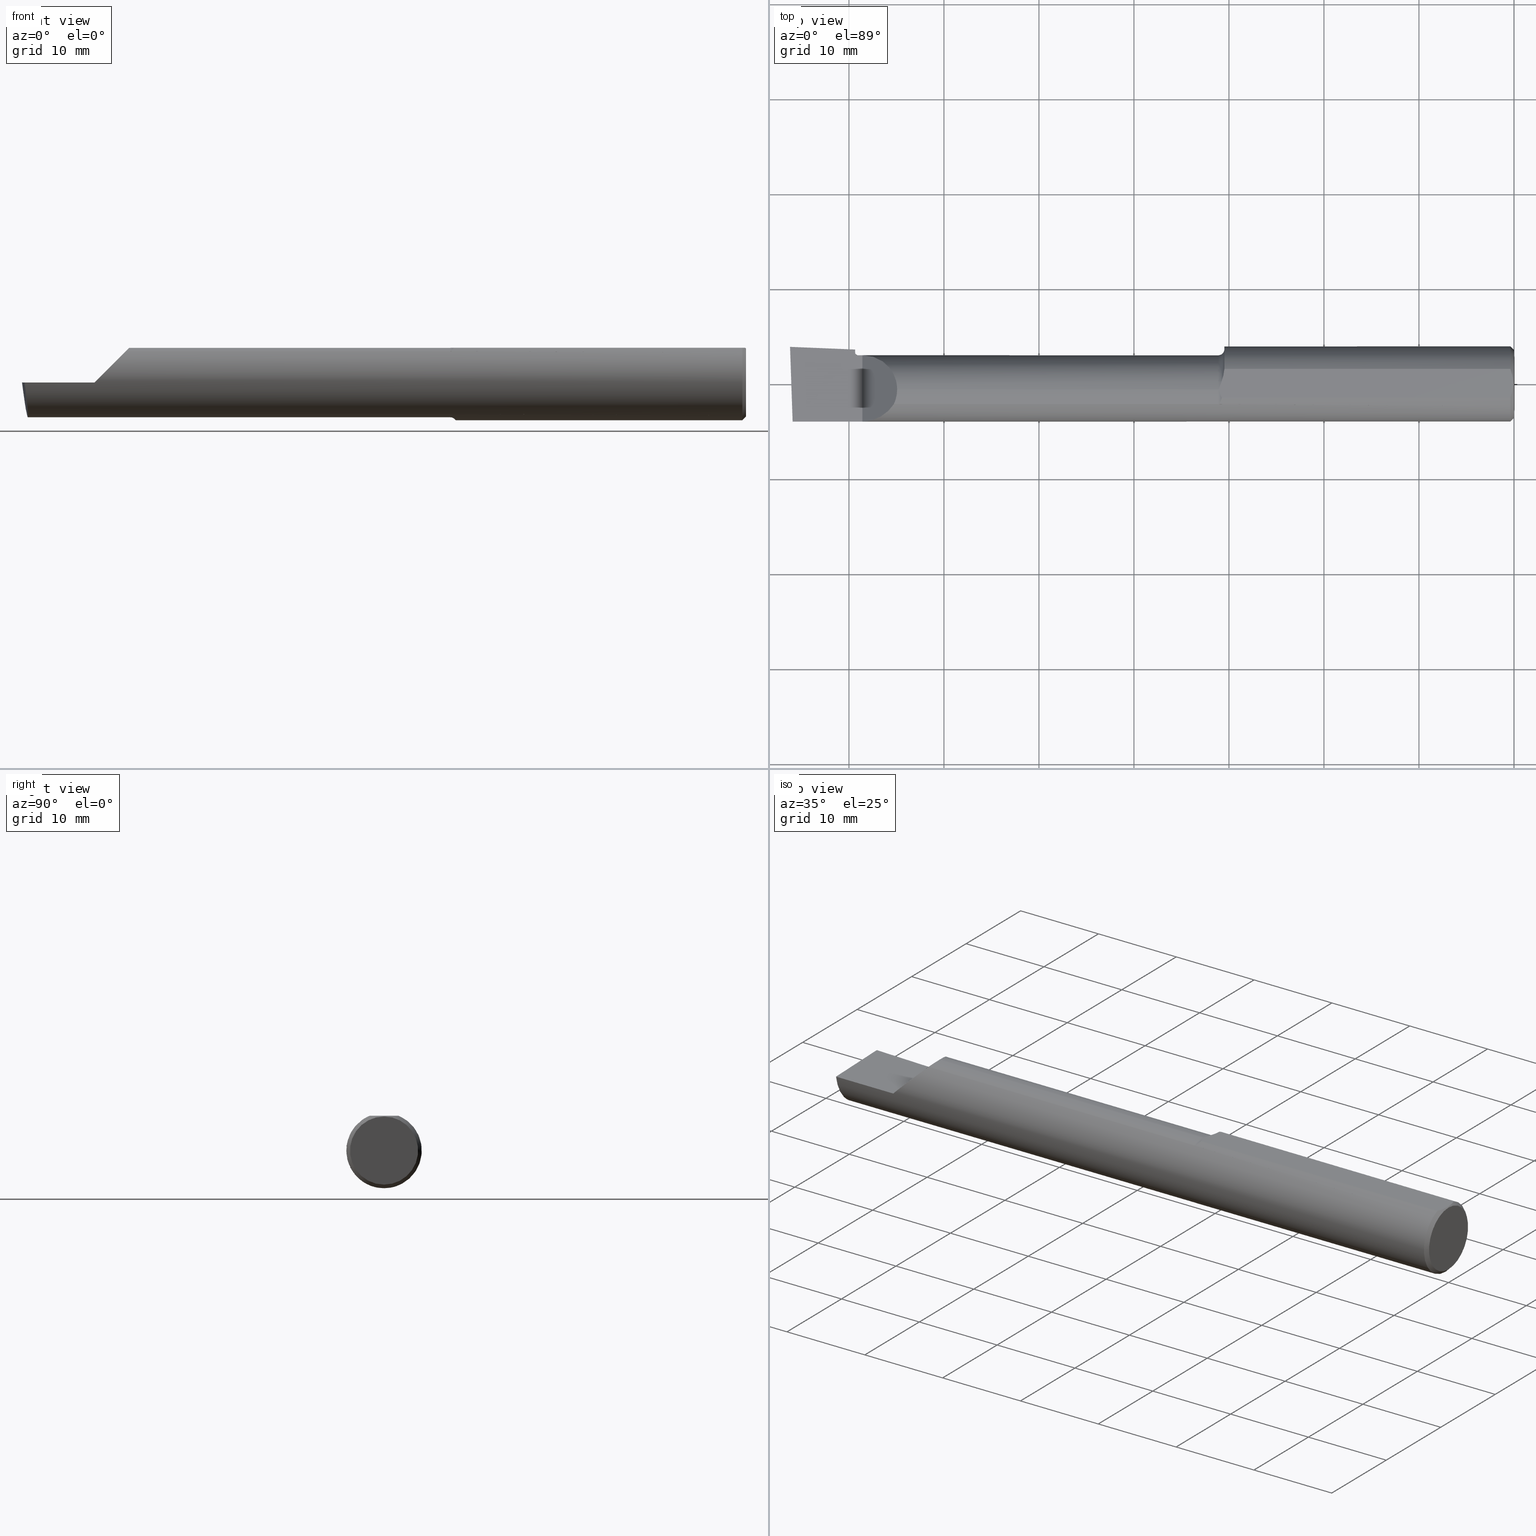
[diagram: canonical four-view strip — front | top / right | iso, engineering-drawing reading convention]
A machine part, canonical four-view strip (front | top / right | iso — engineering-drawing reading convention). The complete STEP part file that produces these views, byte-faithful:
ISO-10303-21;
HEADER;
FILE_DESCRIPTION (( 'STEP AP203' ),
    '1' );
FILE_NAME ('210480-LHBB3116.STEP',
    '2024-09-03T19:14:05',
    ( '' ),
    ( '' ),
    'SwSTEP 2.0',
    'SolidWorks 2024',
    '' );
FILE_SCHEMA (( 'CONFIG_CONTROL_DESIGN' ));
ENDSEC;

DATA;
#1 = VERTEX_POINT ( 'NONE', #184 ) ;
#2 = ORIENTED_EDGE ( 'NONE', *, *, #357, .F. ) ;
#3 = CARTESIAN_POINT ( 'NONE',  ( -1.219508261956889772, -0.08224208440130563458, 0.1326837206089791499 ) ) ;
#4 = DIRECTION ( 'NONE',  ( 1.000000000000000000, -0.000000000000000000, -0.000000000000000000 ) ) ;
#5 = EDGE_CURVE ( 'NONE', #230, #632, #17, .T. ) ;
#6 = CARTESIAN_POINT ( 'NONE',  ( -0.008307085287358404943, 0.04068523568973327759, 0.1441000000000000059 ) ) ;
#7 = VERTEX_POINT ( 'NONE', #591 ) ;
#8 = DIRECTION ( 'NONE',  ( -0.000000000000000000, -0.000000000000000000, -1.000000000000000000 ) ) ;
#9 = DIRECTION ( 'NONE',  ( 0.000000000000000000, 0.000000000000000000, 1.000000000000000000 ) ) ;
#10 = EDGE_CURVE ( 'NONE', #23, #349, #276, .T. ) ;
#11 = CARTESIAN_POINT ( 'NONE',  ( 3.000000000000000444, 0.06250000000000000000, 0.1440999999999999504 ) ) ;
#12 = B_SPLINE_CURVE_WITH_KNOTS ( 'NONE', 3,
 ( #113, #369, #476, #513 ),
 .UNSPECIFIED., .F., .F.,
 ( 4, 4 ),
 ( 0.0007543384935521793913, 0.001937388479694132030 ),
 .UNSPECIFIED. ) ;
#13 = VERTEX_POINT ( 'NONE', #128 ) ;
#14 = DIRECTION ( 'NONE',  ( 1.742939658942782311E-16, -1.000000000000000000, 0.000000000000000000 ) ) ;
#15 = CARTESIAN_POINT ( 'NONE',  ( -3.000000000000000444, 0.000000000000000000, 0.000000000000000000 ) ) ;
#16 = FACE_OUTER_BOUND ( 'NONE', #146, .T. ) ;
#17 = LINE ( 'NONE', #685, #267 ) ;
#18 = ORIENTED_EDGE ( 'NONE', *, *, #719, .F. ) ;
#19 = DIRECTION ( 'NONE',  ( 1.000000000000000000, -0.000000000000000000, -0.000000000000000000 ) ) ;
#20 = TOROIDAL_SURFACE ( 'NONE', #478, 0.1688999999999999391, 0.02500000000000001527 ) ;
#21 = APPROVAL ( #731, 'UNSPECIFIED' ) ;
#22 = CONICAL_SURFACE ( 'NONE', #156, 0.2014507553098423831, 0.04014257279586988525 ) ;
#23 = VERTEX_POINT ( 'NONE', #580 ) ;
#24 = CARTESIAN_POINT ( 'NONE',  ( -1.206230440715366115, -0.03646003586407876862, -0.1522257056384942464 ) ) ;
#25 = CARTESIAN_POINT ( 'NONE',  ( -2.719999999999999307, -0.02500000000000000486, 0.000000000000000000 ) ) ;
#26 = VERTEX_POINT ( 'NONE', #119 ) ;
#27 = ADVANCED_FACE ( 'NONE', ( #137 ), #172, .F. ) ;
#28 = APPLICATION_PROTOCOL_DEFINITION ( 'international standard', 'config_control_design', 1994, #111 ) ;
#29 = CARTESIAN_POINT ( 'NONE',  ( -2.556100000000000261, 0.05929466837451163874, 0.1439000000000000279 ) ) ;
#30 = EDGE_CURVE ( 'NONE', #71, #13, #411, .T. ) ;
#31 = ORIENTED_EDGE ( 'NONE', *, *, #279, .T. ) ;
#32 = PERSON_AND_ORGANIZATION ( #564, #328 ) ;
#33 = ADVANCED_FACE ( 'NONE', ( #179 ), #406, .T. ) ;
#34 = CARTESIAN_POINT ( 'NONE',  ( -1.225000000000000311, -0.02500000000000000486, 0.000000000000000000 ) ) ;
#35 = ORIENTED_EDGE ( 'NONE', *, *, #357, .T. ) ;
#36 = AXIS2_PLACEMENT_3D ( 'NONE', #127, #356, #69 ) ;
#37 = DESIGN_CONTEXT ( 'detailed design', #111, 'design' ) ;
#38 = CARTESIAN_POINT ( 'NONE',  ( -1.225000000000000311, -0.02500000000000000486, 0.000000000000000000 ) ) ;
#39 = VERTEX_POINT ( 'NONE', #66 ) ;
#40 = EDGE_CURVE ( 'NONE', #537, #700, #168, .T. ) ;
#41 = ADVANCED_FACE ( 'NONE', ( #131 ), #525, .T. ) ;
#42 = CARTESIAN_POINT ( 'NONE',  ( -1.201996614417090603, 0.006087683071544604425, -0.1560999999999810872 ) ) ;
#43 = AXIS2_PLACEMENT_3D ( 'NONE', #629, #124, #352 ) ;
#44 = DIRECTION ( 'NONE',  ( 1.000000000000000000, -0.000000000000000000, -0.000000000000000000 ) ) ;
#45 = CIRCLE ( 'NONE', #571, 0.2026556797788580666 ) ;
#46 = CARTESIAN_POINT ( 'NONE',  ( -2.556000000000000494, -0.1560999999999999888, 3.826894855694925850E-18 ) ) ;
#47 = ORIENTED_EDGE ( 'NONE', *, *, #238, .T. ) ;
#48 = DIRECTION ( 'NONE',  ( 0.000000000000000000, 0.000000000000000000, 1.000000000000000000 ) ) ;
#49 = ORIENTED_EDGE ( 'NONE', *, *, #413, .F. ) ;
#50 = DIRECTION ( 'NONE',  ( 0.000000000000000000, 1.000000000000000000, 0.000000000000000000 ) ) ;
#51 = AXIS2_PLACEMENT_3D ( 'NONE', #709, #256, #55 ) ;
#52 = AXIS2_PLACEMENT_3D ( 'NONE', #188, #134, #298 ) ;
#53 = ORIENTED_EDGE ( 'NONE', *, *, #249, .F. ) ;
#54 = DIRECTION ( 'NONE',  ( -0.9919506264397697226, -0.03437759245049912260, -0.1218693392246629065 ) ) ;
#55 = DIRECTION ( 'NONE',  ( 0.000000000000000000, 0.000000000000000000, 1.000000000000000000 ) ) ;
#56 = CC_DESIGN_SECURITY_CLASSIFICATION ( #387, ( #254 ) ) ;
#57 = ORIENTED_EDGE ( 'NONE', *, *, #143, .F. ) ;
#58 = CARTESIAN_POINT ( 'NONE',  ( -1.225000000000000311, -0.08570000000000035922, 0.1304711462354797291 ) ) ;
#59 = CARTESIAN_POINT ( 'NONE',  ( -1.200000000000000400, 0.07069999999999972140, 0.1391715488165596037 ) ) ;
#60 = CARTESIAN_POINT ( 'NONE',  ( -1.221844053232373994, -0.02804753169359755147, 0.1440999999999999781 ) ) ;
#61 = ORIENTED_EDGE ( 'NONE', *, *, #161, .F. ) ;
#62 = LINE ( 'NONE', #281, #716 ) ;
#63 = LINE ( 'NONE', #368, #325 ) ;
#64 = EDGE_CURVE ( 'NONE', #632, #96, #725, .T. ) ;
#65 = CIRCLE ( 'NONE', #260, 0.1560999999999999888 ) ;
#66 = CARTESIAN_POINT ( 'NONE',  ( -4.695363739110452099E-17, -7.582401355855259480E-33, 0.1410999999999975052 ) ) ;
#67 = ORIENTED_EDGE ( 'NONE', *, *, #487, .T. ) ;
#68 = DIRECTION ( 'NONE',  ( 1.000000000000000000, 1.742939658942782065E-16, 0.000000000000000000 ) ) ;
#69 = DIRECTION ( 'NONE',  ( 0.000000000000000000, 0.000000000000000000, 1.000000000000000000 ) ) ;
#70 = ADVANCED_FACE ( 'NONE', ( #657 ), #662, .T. ) ;
#71 = VERTEX_POINT ( 'NONE', #724 ) ;
#72 = ORIENTED_EDGE ( 'NONE', *, *, #143, .T. ) ;
#73 = DIRECTION ( 'NONE',  ( 0.000000000000000000, 0.000000000000000000, 1.000000000000000000 ) ) ;
#74 = CARTESIAN_POINT ( 'NONE',  ( -1.213353959584577479, 0.002866311517142755127, 0.1440999999999999781 ) ) ;
#75 = CARTESIAN_POINT ( 'NONE',  ( -2.721083675209253094, 0.02807969144452237067, -0.1338157537294432931 ) ) ;
#76 = EDGE_LOOP ( 'NONE', ( #115, #660, #306, #702, #392, #47 ) ) ;
#77 = VECTOR ( 'NONE', #611, 39.37007874015748143 ) ;
#78 = ORIENTED_EDGE ( 'NONE', *, *, #165, .F. ) ;
#79 = LINE ( 'NONE', #182, #547 ) ;
#80 = APPLICATION_CONTEXT ( 'configuration controlled 3d designs of mechanical parts and assemblies' ) ;
#81 = DIRECTION ( 'NONE',  ( 0.000000000000000000, -0.9396926207859103153, -0.3420201433256629397 ) ) ;
#82 = ORIENTED_EDGE ( 'NONE', *, *, #646, .T. ) ;
#83 =( NAMED_UNIT ( * ) SI_UNIT ( $, .STERADIAN. ) SOLID_ANGLE_UNIT ( ) );
#84 = CARTESIAN_POINT ( 'NONE',  ( -1.204082834115641321, 0.03088512097716966318, 0.1440999999999999504 ) ) ;
#85 = CIRCLE ( 'NONE', #445, 0.01000000000000016674 ) ;
#86 = EDGE_LOOP ( 'NONE', ( #336, #227, #737, #61, #565, #582 ) ) ;
#87 = CARTESIAN_POINT ( 'NONE',  ( -1.207963511987623750, -0.04781653154435709652, -0.1490354188630816368 ) ) ;
#88 = CARTESIAN_POINT ( 'NONE',  ( -2.729999999999999538, -0.05609999999999996934, 0.04000000000000000083 ) ) ;
#89 = EDGE_CURVE ( 'NONE', #192, #13, #379, .T. ) ;
#90 = APPROVAL_DATE_TIME ( #602, #190 ) ;
#91 = B_SPLINE_CURVE_WITH_KNOTS ( 'NONE', 3,
 ( #409, #633, #480, #340 ),
 .UNSPECIFIED., .F., .F.,
 ( 4, 4 ),
 ( 0.001819519886996684996, 0.002475127250578773152 ),
 .UNSPECIFIED. ) ;
#92 = DIRECTION ( 'NONE',  ( 0.000000000000000000, 0.000000000000000000, 1.000000000000000000 ) ) ;
#93 = CARTESIAN_POINT ( 'NONE',  ( -1.222162220462625681, -0.08489276752862959241, -0.1310023188550711870 ) ) ;
#94 = DIRECTION ( 'NONE',  ( 1.000000000000000000, -0.000000000000000000, -0.000000000000000000 ) ) ;
#95 = EDGE_CURVE ( 'NONE', #663, #540, #728, .T. ) ;
#96 = VERTEX_POINT ( 'NONE', #264 ) ;
#97 = TOROIDAL_SURFACE ( 'NONE', #282, 0.1539000000000001200, 0.01000000000000009041 ) ;
#98 = PERSON_AND_ORGANIZATION_ROLE ( 'design_supplier' ) ;
#99 = DIRECTION ( 'NONE',  ( 0.000000000000000000, 1.000000000000000000, 0.000000000000000000 ) ) ;
#100 = ORIENTED_EDGE ( 'NONE', *, *, #89, .F. ) ;
#101 = PERSON_AND_ORGANIZATION ( #564, #328 ) ;
#102 = CARTESIAN_POINT ( 'NONE',  ( -2.975676552398976771, -0.08569999999999965146, -0.1304711462354801732 ) ) ;
#103 = TOROIDAL_SURFACE ( 'NONE', #309, 0.1688999999999999391, 0.02500000000000001527 ) ;
#104 = CARTESIAN_POINT ( 'NONE',  ( -2.719999999999999307, 0.1189000000000001306, 3.826894855694928162E-18 ) ) ;
#105 = ADVANCED_FACE ( 'NONE', ( #330 ), #428, .F. ) ;
#106 = CARTESIAN_POINT ( 'NONE',  ( -0.003000000000002389644, 6.421147883366632753E-21, 0.1440999999999999504 ) ) ;
#107 = ORIENTED_EDGE ( 'NONE', *, *, #386, .F. ) ;
#108 = DIRECTION ( 'NONE',  ( -0.1219414168599300269, 0.000000000000000000, 0.9925372994775525370 ) ) ;
#109 = VERTEX_POINT ( 'NONE', #217 ) ;
#110 = CARTESIAN_POINT ( 'NONE',  ( -1.210843495424060556, -0.06001999666777315529, 0.1440999999999999504 ) ) ;
#111 = APPLICATION_CONTEXT ( 'configuration controlled 3d designs of mechanical parts and assemblies' ) ;
#112 = EDGE_CURVE ( 'NONE', #7, #129, #153, .T. ) ;
#113 = CARTESIAN_POINT ( 'NONE',  ( -2.729814999632692363, 0.07017856946061024059, -0.1184930152355837402 ) ) ;
#114 = VECTOR ( 'NONE', #50, 39.37007874015748143 ) ;
#115 = ORIENTED_EDGE ( 'NONE', *, *, #645, .F. ) ;
#116 = DIRECTION ( 'NONE',  ( -1.000000000000000000, 0.000000000000000000, 0.000000000000000000 ) ) ;
#117 = CARTESIAN_POINT ( 'NONE',  ( -1.221844053232375771, -0.02500000000003144845, 0.1440999999999999504 ) ) ;
#118 =( BOUNDED_CURVE ( )  B_SPLINE_CURVE ( 3, ( #102, #732, #557, #604 ),
 .UNSPECIFIED., .F., .F. ) 
 B_SPLINE_CURVE_WITH_KNOTS ( ( 4, 4 ),
 ( 6.122674497807365945, 6.558126988897921450 ),
 .UNSPECIFIED. ) 
 CURVE ( )  GEOMETRIC_REPRESENTATION_ITEM ( )  RATIONAL_B_SPLINE_CURVE ( ( 1.000000000000000000, 0.9842607512044745377, 0.9842607512044745377, 1.000000000000000000 ) ) 
 REPRESENTATION_ITEM ( '' )  );
#119 = CARTESIAN_POINT ( 'NONE',  ( -1.200050504025077514, 0.06001999666777743658, 0.1440999999999999504 ) ) ;
#120 = CARTESIAN_POINT ( 'NONE',  ( -2.725157097429441233, 0.04322541840385408368, -0.1283031599399234168 ) ) ;
#121 = ORIENTED_EDGE ( 'NONE', *, *, #438, .T. ) ;
#122 = DIRECTION ( 'NONE',  ( 0.000000000000000000, -1.707404996040164265E-16, -1.000000000000000000 ) ) ;
#123 = CARTESIAN_POINT ( 'NONE',  ( -1.200050504025077514, 0.06001999666777743658, 0.1440999999999999504 ) ) ;
#124 = DIRECTION ( 'NONE',  ( -1.000000000000000000, 0.000000000000000000, 0.000000000000000000 ) ) ;
#125 = ORIENTED_EDGE ( 'NONE', *, *, #5, .F. ) ;
#126 = CARTESIAN_POINT ( 'NONE',  ( -2.569528853764521337, -0.08570000000000285723, 0.1304711462354783413 ) ) ;
#127 = CARTESIAN_POINT ( 'NONE',  ( 0.000000000000000000, -0.02500000000000000486, 0.000000000000000000 ) ) ;
#128 = CARTESIAN_POINT ( 'NONE',  ( -1.210843495424060556, -0.06001999666777315529, 0.1440999999999999504 ) ) ;
#129 = VERTEX_POINT ( 'NONE', #104 ) ;
#130 = DIRECTION ( 'NONE',  ( -0.7071067811865483499, 0.000000000000000000, 0.7071067811865467956 ) ) ;
#131 = FACE_OUTER_BOUND ( 'NONE', #343, .T. ) ;
#132 = CC_DESIGN_APPROVAL ( #190, ( #254 ) ) ;
#133 = ORIENTED_EDGE ( 'NONE', *, *, #726, .T. ) ;
#134 = DIRECTION ( 'NONE',  ( 0.000000000000000000, 1.000000000000000000, -0.000000000000000000 ) ) ;
#135 = CARTESIAN_POINT ( 'NONE',  ( -1.220724021719191921, -0.01776615298046435934, 0.1440999999999999504 ) ) ;
#136 = CARTESIAN_POINT ( 'NONE',  ( -1.225000000000000311, -0.08570000000000035922, 0.1304711462354797291 ) ) ;
#137 = FACE_OUTER_BOUND ( 'NONE', #248, .T. ) ;
#138 = CLOSED_SHELL ( 'NONE', ( #105, #567, #275, #70, #377, #491, #319, #558, #613, #701, #434, #508, #615, #41, #560, #299, #147, #33, #296, #27 ) ) ;
#139 = DIRECTION ( 'NONE',  ( 0.07437990725530779779, -0.9370896517296887218, -0.3410727400684823163 ) ) ;
#140 = CARTESIAN_POINT ( 'NONE',  ( -1.200532541532474795, 0.04511886254870696444, 0.1440999999999999781 ) ) ;
#141 = PERSON_AND_ORGANIZATION_ROLE ( 'creator' ) ;
#142 = DIRECTION ( 'NONE',  ( 0.000000000000000000, 1.000000000000000000, 0.000000000000000000 ) ) ;
#143 = EDGE_CURVE ( 'NONE', #302, #474, #543, .T. ) ;
#144 = COORDINATED_UNIVERSAL_TIME_OFFSET ( 8, 0, .BEHIND. ) ;
#145 = LINE ( 'NONE', #603, #322 ) ;
#146 = EDGE_LOOP ( 'NONE', ( #133, #419, #318, #370, #598, #162, #455, #82, #514, #31, #687 ) ) ;
#147 = ADVANCED_FACE ( 'NONE', ( #268 ), #103, .F. ) ;
#148 = CARTESIAN_POINT ( 'NONE',  ( -1.213126895908789304, -0.06887538526317520116, -0.1401954838979539986 ) ) ;
#149 = CARTESIAN_POINT ( 'NONE',  ( -2.976130359589496344, -0.02500000000000002220, -0.1439000000000000279 ) ) ;
#150 = ORIENTED_EDGE ( 'NONE', *, *, #203, .F. ) ;
#151 = B_SPLINE_CURVE_WITH_KNOTS ( 'NONE', 3,
 ( #110, #391, #506, #398, #456, #3, #287, #574, #448, #58 ),
 .UNSPECIFIED., .F., .F.,
 ( 4, 2, 2, 2, 4 ),
 ( 5.292347910189429887E-07, 0.0004247077115782497449, 0.0006367969499718673576, 0.0007428415691686792539, 0.0008488861883654910418 ),
 .UNSPECIFIED. ) ;
#152 = DATE_TIME_ROLE ( 'creation_date' ) ;
#153 = LINE ( 'NONE', #722, #329 ) ;
#154 = ORIENTED_EDGE ( 'NONE', *, *, #468, .F. ) ;
#155 = AXIS2_PLACEMENT_3D ( 'NONE', #15, #589, #421 ) ;
#156 = AXIS2_PLACEMENT_3D ( 'NONE', #259, #647, #142 ) ;
#157 = CC_DESIGN_PERSON_AND_ORGANIZATION_ASSIGNMENT ( #496, #98, ( #254 ) ) ;
#158 = DIRECTION ( 'NONE',  ( 1.000000000000000000, -0.000000000000000000, -0.000000000000000000 ) ) ;
#159 = LOCAL_TIME ( 12, 14, 5.000000000000000000, #144 ) ;
#160 = PLANE ( 'NONE',  #216 ) ;
#161 = EDGE_CURVE ( 'NONE', #230, #692, #679, .T. ) ;
#162 = ORIENTED_EDGE ( 'NONE', *, *, #308, .T. ) ;
#163 = CARTESIAN_POINT ( 'NONE',  ( -0.01133355301893235190, -0.05048430180739589546, 0.1440999999999999781 ) ) ;
#164 = ORIENTED_EDGE ( 'NONE', *, *, #670, .F. ) ;
#165 = EDGE_CURVE ( 'NONE', #1, #632, #199, .T. ) ;
#166 = CARTESIAN_POINT ( 'NONE',  ( -2.982667168175673122, -0.1560999999999999888, -0.05371247775559849502 ) ) ;
#167 = EDGE_CURVE ( 'NONE', #224, #230, #118, .T. ) ;
#168 =( BOUNDED_CURVE ( )  B_SPLINE_CURVE ( 3, ( #239, #358, #469, #529 ),
 .UNSPECIFIED., .F., .T. ) 
 B_SPLINE_CURVE_WITH_KNOTS ( ( 4, 4 ),
 ( 4.206370596475368373, 4.793754225472294905 ),
 .UNSPECIFIED. ) 
 CURVE ( )  GEOMETRIC_REPRESENTATION_ITEM ( )  RATIONAL_B_SPLINE_CURVE ( ( 1.000000000000000000, 0.9714544434386379601, 0.9714544434386379601, 1.000000000000000000 ) ) 
 REPRESENTATION_ITEM ( '' )  );
#169 = ORIENTED_EDGE ( 'NONE', *, *, #10, .T. ) ;
#170 = CARTESIAN_POINT ( 'NONE',  ( -2.892123929497258938, 0.1573865708554229581, -0.8791156229476213557 ) ) ;
#171 = CARTESIAN_POINT ( 'NONE',  ( -1.221844053232385763, -0.02136326841098919530, 0.1441000000000000059 ) ) ;
#172 = PLANE ( 'NONE',  #371 ) ;
#173 = DIRECTION ( 'NONE',  ( 1.000000000000000000, -0.000000000000000000, -0.000000000000000000 ) ) ;
#174 = CIRCLE ( 'NONE', #375, 0.1439000000000001112 ) ;
#175 = ORIENTED_EDGE ( 'NONE', *, *, #112, .T. ) ;
#176 = DIRECTION ( 'NONE',  ( -1.000000000000000000, 0.000000000000000000, 0.000000000000000000 ) ) ;
#177 = CARTESIAN_POINT ( 'NONE',  ( -1.200000000000000400, 0.07069999999999972140, 0.1391715488165596037 ) ) ;
#178 = PRODUCT_DEFINITION ( 'UNKNOWN', '', #254, #37 ) ;
#179 = FACE_OUTER_BOUND ( 'NONE', #658, .T. ) ;
#180 = VERTEX_POINT ( 'NONE', #497 ) ;
#181 = DIRECTION ( 'NONE',  ( -1.000000000000000000, 0.000000000000000000, 0.000000000000000000 ) ) ;
#182 = CARTESIAN_POINT ( 'NONE',  ( -2.999553225608605267, 0.1407279727905360600, 3.826894855694925850E-18 ) ) ;
#183 = B_SPLINE_CURVE_WITH_KNOTS ( 'NONE', 3,
 ( #285, #205, #744, #231 ),
 .UNSPECIFIED., .F., .F.,
 ( 4, 4 ),
 ( 0.0005609392357388431503, 0.007068866004979980876 ),
 .UNSPECIFIED. ) ;
#184 = CARTESIAN_POINT ( 'NONE',  ( -1.225000000000000311, -0.02500000000000000486, 0.1438999999999999446 ) ) ;
#185 = EDGE_CURVE ( 'NONE', #512, #180, #402, .T. ) ;
#186 = DIMENSIONAL_EXPONENTS ( 1.000000000000000000, 0.000000000000000000, 0.000000000000000000, 0.000000000000000000, 0.000000000000000000, 0.000000000000000000, 0.000000000000000000 ) ;
#187 = ORIENTED_EDGE ( 'NONE', *, *, #541, .T. ) ;
#188 = CARTESIAN_POINT ( 'NONE',  ( -1.225000000000000311, -0.02499999999999999098, 0.1688999999999999391 ) ) ;
#189 = CARTESIAN_POINT ( 'NONE',  ( -2.719999999999999307, -0.02500000000000000486, 0.000000000000000000 ) ) ;
#190 = APPROVAL ( #384, 'UNSPECIFIED' ) ;
#191 = CARTESIAN_POINT ( 'NONE',  ( -1.225000000000000311, -0.02500000000000000486, 0.000000000000000000 ) ) ;
#192 = VERTEX_POINT ( 'NONE', #489 ) ;
#193 = DIRECTION ( 'NONE',  ( 1.000000000000000000, -0.000000000000000000, -0.000000000000000000 ) ) ;
#194 = CARTESIAN_POINT ( 'NONE',  ( -1.217139718007824944, -0.007416860360654541767, 0.1440999999999999781 ) ) ;
#195 = FACE_OUTER_BOUND ( 'NONE', #550, .T. ) ;
#196 = ORIENTED_EDGE ( 'NONE', *, *, #348, .T. ) ;
#197 = FACE_OUTER_BOUND ( 'NONE', #301, .T. ) ;
#198 =( BOUNDED_CURVE ( )  B_SPLINE_CURVE ( 3, ( #683, #166, #294, #225 ),
 .UNSPECIFIED., .F., .T. ) 
 B_SPLINE_CURVE_WITH_KNOTS ( ( 4, 4 ),
 ( 4.987330662103024892, 5.976951217326471166 ),
 .UNSPECIFIED. ) 
 CURVE ( )  GEOMETRIC_REPRESENTATION_ITEM ( )  RATIONAL_B_SPLINE_CURVE ( ( 1.000000000000000000, 0.9200392120919970163, 0.9200392120919970163, 1.000000000000000000 ) ) 
 REPRESENTATION_ITEM ( '' )  );
#199 = CIRCLE ( 'NONE', #289, 0.1438999999999999446 ) ;
#200 = DIRECTION ( 'NONE',  ( -1.000000000000000000, 0.000000000000000000, 0.000000000000000000 ) ) ;
#201 = ORIENTED_EDGE ( 'NONE', *, *, #674, .F. ) ;
#202 = CONICAL_SURFACE ( 'NONE', #612, 0.1410999999999975607, 0.7853981633974471688 ) ;
#203 = EDGE_CURVE ( 'NONE', #180, #648, #545, .T. ) ;
#204 = CARTESIAN_POINT ( 'NONE',  ( -1.220128093538974889, -0.08306175160951355385, -0.1321708551218276906 ) ) ;
#205 = CARTESIAN_POINT ( 'NONE',  ( -2.814562659517192866, 0.08023483548401057208, -0.1148328337352035183 ) ) ;
#206 = ORIENTED_EDGE ( 'NONE', *, *, #504, .F. ) ;
#207 = EDGE_CURVE ( 'NONE', #26, #23, #145, .T. ) ;
#208 = PERSON_AND_ORGANIZATION ( #564, #328 ) ;
#209 = CARTESIAN_POINT ( 'NONE',  ( -1.200000000000000400, 0.000000000000000000, 0.000000000000000000 ) ) ;
#210 = ORIENTED_EDGE ( 'NONE', *, *, #249, .T. ) ;
#211 = APPROVAL_STATUS ( 'not_yet_approved' ) ;
#212 = CARTESIAN_POINT ( 'NONE',  ( -3.000000000000000444, -0.06001999666777744352, 0.1440999999999999226 ) ) ;
#213 = ORIENTED_EDGE ( 'NONE', *, *, #636, .F. ) ;
#214 = PRODUCT_RELATED_PRODUCT_CATEGORY ( 'detail', '', ( #313 ) ) ;
#215 = CARTESIAN_POINT ( 'NONE',  ( -1.200730260234562863, 0.03041887409375934256, -0.1532281963622442456 ) ) ;
#216 = AXIS2_PLACEMENT_3D ( 'NONE', #563, #48, #734 ) ;
#217 = CARTESIAN_POINT ( 'NONE',  ( -2.729999999999999538, 0.1026580227690539332, -0.08595719412995680986 ) ) ;
#218 = EDGE_CURVE ( 'NONE', #530, #1, #735, .T. ) ;
#219 = APPROVAL_DATE_TIME ( #556, #21 ) ;
#220 = EDGE_CURVE ( 'NONE', #39, #365, #673, .T. ) ;
#221 = EDGE_LOOP ( 'NONE', ( #485, #277, #452, #526, #707 ) ) ;
#222 = CARTESIAN_POINT ( 'NONE',  ( -2.729999999999999538, -0.02500000000000000486, 0.000000000000000000 ) ) ;
#223 = EDGE_CURVE ( 'NONE', #349, #192, #711, .T. ) ;
#224 = VERTEX_POINT ( 'NONE', #688 ) ;
#225 = CARTESIAN_POINT ( 'NONE',  ( -2.975676552398976771, -0.08569999999999965146, -0.1304711462354801732 ) ) ;
#226 = LOCAL_TIME ( 12, 14, 5.000000000000000000, #439 ) ;
#227 = ORIENTED_EDGE ( 'NONE', *, *, #40, .F. ) ;
#228 = LINE ( 'NONE', #566, #114 ) ;
#229 = CARTESIAN_POINT ( 'NONE',  ( 0.000000000000000000, -0.02500000000000000486, 0.1439000000000000279 ) ) ;
#230 = VERTEX_POINT ( 'NONE', #453 ) ;
#231 = CARTESIAN_POINT ( 'NONE',  ( -2.984581445594569171, 0.09576735185321419430, -0.1091794601134918330 ) ) ;
#232 = ORIENTED_EDGE ( 'NONE', *, *, #695, .F. ) ;
#233 = CARTESIAN_POINT ( 'NONE',  ( 0.000000000000000000, 1.727976633596885295E-17, -0.1410999999999975607 ) ) ;
#234 = DIRECTION ( 'NONE',  ( -1.000000000000000000, 0.000000000000000000, 0.000000000000000000 ) ) ;
#235 = CARTESIAN_POINT ( 'NONE',  ( -1.214985600317322278, -0.04846509284843834864, 0.1440999999999999504 ) ) ;
#236 = ORIENTED_EDGE ( 'NONE', *, *, #291, .T. ) ;
#237 = DIRECTION ( 'NONE',  ( -1.000000000000000000, 0.000000000000000000, 0.000000000000000000 ) ) ;
#238 = EDGE_CURVE ( 'NONE', #23, #578, #65, .T. ) ;
#239 = CARTESIAN_POINT ( 'NONE',  ( -2.984581445594569171, 0.09576735185321419430, -0.1091794601134918330 ) ) ;
#240 = EDGE_LOOP ( 'NONE', ( #412, #509, #397, #697 ) ) ;
#241 = CARTESIAN_POINT ( 'NONE',  ( -0.01500000000000298143, 0.000000000000000000, 0.000000000000000000 ) ) ;
#242 = CARTESIAN_POINT ( 'NONE',  ( -1.225000000000000311, -0.02500000000000002220, -0.1438999999999999446 ) ) ;
#243 = DIRECTION ( 'NONE',  ( 0.000000000000000000, 0.000000000000000000, 1.000000000000000000 ) ) ;
#244 = VERTEX_POINT ( 'NONE', #404 ) ;
#245 = CARTESIAN_POINT ( 'NONE',  ( -4.695363739110451482E-17, -2.459287858768216081E-17, 0.000000000000000000 ) ) ;
#246 = FACE_OUTER_BOUND ( 'NONE', #520, .T. ) ;
#247 = FACE_OUTER_BOUND ( 'NONE', #380, .T. ) ;
#248 = EDGE_LOOP ( 'NONE', ( #366, #196 ) ) ;
#249 = EDGE_CURVE ( 'NONE', #692, #360, #62, .T. ) ;
#250 = VECTOR ( 'NONE', #405, 39.37007874015748143 ) ;
#251 = CARTESIAN_POINT ( 'NONE',  ( -1.204862523376330152, -0.02500000000022615382, -0.1540850739039595629 ) ) ;
#252 = CIRCLE ( 'NONE', #690, 0.1560999999999999888 ) ;
#253 = DIRECTION ( 'NONE',  ( 0.000000000000000000, 0.000000000000000000, 1.000000000000000000 ) ) ;
#254 = PRODUCT_DEFINITION_FORMATION_WITH_SPECIFIED_SOURCE ( 'ANY', '', #313, .NOT_KNOWN. ) ;
#255 = APPROVAL_ROLE ( '' ) ;
#256 = DIRECTION ( 'NONE',  ( 1.000000000000000000, 0.000000000000000000, -0.000000000000000000 ) ) ;
#257 = ORIENTED_EDGE ( 'NONE', *, *, #561, .F. ) ;
#258 = DATE_AND_TIME ( #600, #226 ) ;
#259 = CARTESIAN_POINT ( 'NONE',  ( -2.700000000000001066, -0.05609999999999996934, 0.04000000000000000083 ) ) ;
#260 = AXIS2_PLACEMENT_3D ( 'NONE', #450, #116, #339 ) ;
#261 = CALENDAR_DATE ( 2024, 3, 9 ) ;
#262 = CARTESIAN_POINT ( 'NONE',  ( -1.201609734521863926, 0.01225372253022601748, -0.1557388326591280792 ) ) ;
#263 = EDGE_CURVE ( 'NONE', #365, #578, #344, .T. ) ;
#264 = CARTESIAN_POINT ( 'NONE',  ( -1.225000000000000311, -0.08570000000000031759, -0.1304711462354797846 ) ) ;
#265 =( BOUNDED_CURVE ( )  B_SPLINE_CURVE ( 3, ( #597, #482, #29, #401 ),
 .UNSPECIFIED., .F., .T. ) 
 B_SPLINE_CURVE_WITH_KNOTS ( ( 4, 4 ),
 ( 4.712388980384689674, 6.283185307179586232 ),
 .UNSPECIFIED. ) 
 CURVE ( )  GEOMETRIC_REPRESENTATION_ITEM ( )  RATIONAL_B_SPLINE_CURVE ( ( 1.000000000000000000, 0.8047378541243649375, 0.8047378541243649375, 1.000000000000000000 ) ) 
 REPRESENTATION_ITEM ( '' )  );
#266 = PERSON_AND_ORGANIZATION_ROLE ( 'classification_officer' ) ;
#267 = VECTOR ( 'NONE', #624, 39.37007874015748143 ) ;
#268 = FACE_OUTER_BOUND ( 'NONE', #373, .T. ) ;
#269 = SHAPE_DEFINITION_REPRESENTATION ( #712, #499 ) ;
#270 = CARTESIAN_POINT ( 'NONE',  ( -1.200348850910508469, 0.04224677410306555692, -0.1503974671975662203 ) ) ;
#271 =( BOUNDED_CURVE ( )  B_SPLINE_CURVE ( 3, ( #415, #355, #367, #126 ),
 .UNSPECIFIED., .F., .T. ) 
 B_SPLINE_CURVE_WITH_KNOTS ( ( 4, 4 ),
 ( 0.000000000000000000, 0.4354524910905817059 ),
 .UNSPECIFIED. ) 
 CURVE ( )  GEOMETRIC_REPRESENTATION_ITEM ( )  RATIONAL_B_SPLINE_CURVE ( ( 1.000000000000000000, 0.9842607512044727613, 0.9842607512044727613, 1.000000000000000000 ) ) 
 REPRESENTATION_ITEM ( '' )  );
#272 = CIRCLE ( 'NONE', #314, 0.1410999999999975052 ) ;
#273 = SECURITY_CLASSIFICATION_LEVEL ( 'unclassified' ) ;
#274 = DIRECTION ( 'NONE',  ( 0.000000000000000000, 0.000000000000000000, 1.000000000000000000 ) ) ;
#275 = ADVANCED_FACE ( 'NONE', ( #676 ), #202, .T. ) ;
#276 = B_SPLINE_CURVE_WITH_KNOTS ( 'NONE', 3,
 ( #691, #585, #6, #423, #577, #635 ),
 .UNSPECIFIED., .F., .F.,
 ( 4, 2, 4 ),
 ( 0.003862504283746402787, 0.004641553971935397267, 0.005420603660124392181 ),
 .UNSPECIFIED. ) ;
#277 = ORIENTED_EDGE ( 'NONE', *, *, #220, .F. ) ;
#278 = CARTESIAN_POINT ( 'NONE',  ( -0.003000000000002389644, -0.01021764673483461540, 0.1440999999999999781 ) ) ;
#279 = EDGE_CURVE ( 'NONE', #540, #224, #198, .T. ) ;
#280 = ORIENTED_EDGE ( 'NONE', *, *, #291, .F. ) ;
#281 = CARTESIAN_POINT ( 'NONE',  ( -3.000000000000000444, 0.02421669862456291358, -0.1352217681310924902 ) ) ;
#282 = AXIS2_PLACEMENT_3D ( 'NONE', #189, #304, #634 ) ;
#283 = ORIENTED_EDGE ( 'NONE', *, *, #165, .T. ) ;
#284 = DIRECTION ( 'NONE',  ( 1.000000000000000000, 0.000000000000000000, 0.000000000000000000 ) ) ;
#285 = CARTESIAN_POINT ( 'NONE',  ( -2.729814999632692363, 0.07017856946061024059, -0.1184930152355837402 ) ) ;
#286 = ORIENTED_EDGE ( 'NONE', *, *, #263, .T. ) ;
#287 = CARTESIAN_POINT ( 'NONE',  ( -1.220308733175471838, -0.08325729668116199633, 0.1320471792325032534 ) ) ;
#288 = CARTESIAN_POINT ( 'NONE',  ( -1.200000000000000400, 0.06720526509779088664, 0.1409468955716052796 ) ) ;
#289 = AXIS2_PLACEMENT_3D ( 'NONE', #34, #382, #274 ) ;
#290 = CARTESIAN_POINT ( 'NONE',  ( -1.219201185154609623, -0.03693468910894930762, 0.1440999999999998948 ) ) ;
#291 = EDGE_CURVE ( 'NONE', #626, #632, #581, .T. ) ;
#292 = ORIENTED_EDGE ( 'NONE', *, *, #363, .F. ) ;
#293 = AXIS2_PLACEMENT_3D ( 'NONE', #627, #621, #122 ) ;
#294 = CARTESIAN_POINT ( 'NONE',  ( -2.977743596163800799, -0.1305938407426049386, -0.1009826174484539929 ) ) ;
#295 = CARTESIAN_POINT ( 'NONE',  ( -3.000000000000000444, 0.1536194554637218546, 0.000000000000000000 ) ) ;
#296 = ADVANCED_FACE ( 'NONE', ( #521 ), #738, .T. ) ;
#297 = EDGE_LOOP ( 'NONE', ( #49, #236, #78, #642, #257, #201, #465, #620 ) ) ;
#298 = DIRECTION ( 'NONE',  ( 0.000000000000000000, 0.000000000000000000, 1.000000000000000000 ) ) ;
#299 = ADVANCED_FACE ( 'NONE', ( #337 ), #599, .T. ) ;
#300 = LINE ( 'NONE', #528, #507 ) ;
#301 = EDGE_LOOP ( 'NONE', ( #18, #206, #675, #53 ) ) ;
#302 = VERTEX_POINT ( 'NONE', #503 ) ;
#303 = CARTESIAN_POINT ( 'NONE',  ( -3.000000000000000444, 0.1536194554637218546, 0.000000000000000000 ) ) ;
#304 = DIRECTION ( 'NONE',  ( 1.000000000000000000, -0.000000000000000000, -0.000000000000000000 ) ) ;
#305 = PLANE ( 'NONE',  #706 ) ;
#306 = ORIENTED_EDGE ( 'NONE', *, *, #203, .T. ) ;
#307 = EDGE_CURVE ( 'NONE', #663, #7, #228, .T. ) ;
#308 = EDGE_CURVE ( 'NONE', #13, #530, #151, .T. ) ;
#309 = AXIS2_PLACEMENT_3D ( 'NONE', #666, #158, #332 ) ;
#310 = ORIENTED_EDGE ( 'NONE', *, *, #112, .F. ) ;
#311 =( LENGTH_UNIT ( ) NAMED_UNIT ( * ) SI_UNIT ( $, .METRE. ) );
#312 = CYLINDRICAL_SURFACE ( 'NONE', #341, 0.1560999999999999888 ) ;
#313 = PRODUCT ( '210480-LHBB3116', '210480-LHBB3116', '', ( #721 ) ) ;
#314 = AXIS2_PLACEMENT_3D ( 'NONE', #245, #68, #14 ) ;
#315 = CARTESIAN_POINT ( 'NONE',  ( -2.699999999999998401, 0.1560999999999999888, 3.826894855694925850E-18 ) ) ;
#316 = CC_DESIGN_PERSON_AND_ORGANIZATION_ASSIGNMENT ( #492, #488, ( #313 ) ) ;
#317 = CARTESIAN_POINT ( 'NONE',  ( -2.984581445594569171, 0.09576735185321419430, -0.1091794601134918330 ) ) ;
#318 = ORIENTED_EDGE ( 'NONE', *, *, #645, .T. ) ;
#319 = ADVANCED_FACE ( 'NONE', ( #515 ), #160, .T. ) ;
#320 = PERSON_AND_ORGANIZATION ( #564, #328 ) ;
#321 = DIRECTION ( 'NONE',  ( -1.000000000000000000, 0.000000000000000000, 0.000000000000000000 ) ) ;
#322 = VECTOR ( 'NONE', #549, 39.37007874015748143 ) ;
#323 = CC_DESIGN_DATE_AND_TIME_ASSIGNMENT ( #258, #152, ( #178 ) ) ;
#324 = UNCERTAINTY_MEASURE_WITH_UNIT (LENGTH_MEASURE( 1.000000000000000082E-05 ), #649, 'distance_accuracy_value', 'NONE');
#325 = VECTOR ( 'NONE', #130, 39.37007874015748143 ) ;
#326 = ORIENTED_EDGE ( 'NONE', *, *, #218, .F. ) ;
#327 = COORDINATED_UNIVERSAL_TIME_OFFSET ( 8, 0, .BEHIND. ) ;
#328 = ORGANIZATION ( 'UNSPECIFIED', 'UNSPECIFIED', '' ) ;
#329 = VECTOR ( 'NONE', #321, 39.37007874015748143 ) ;
#330 = FACE_OUTER_BOUND ( 'NONE', #297, .T. ) ;
#331 = CALENDAR_DATE ( 2024, 3, 9 ) ;
#332 = DIRECTION ( 'NONE',  ( 0.000000000000000000, 0.000000000000000000, 1.000000000000000000 ) ) ;
#333 = EDGE_CURVE ( 'NONE', #302, #109, #623, .T. ) ;
#334 = EDGE_LOOP ( 'NONE', ( #164, #35, #232, #470 ) ) ;
#335 = DIRECTION ( 'NONE',  ( 0.000000000000000000, 0.000000000000000000, 1.000000000000000000 ) ) ;
#336 = ORIENTED_EDGE ( 'NONE', *, *, #631, .F. ) ;
#337 = FACE_OUTER_BOUND ( 'NONE', #221, .T. ) ;
#338 = ORIENTED_EDGE ( 'NONE', *, *, #10, .F. ) ;
#339 = DIRECTION ( 'NONE',  ( 0.000000000000000000, 0.000000000000000000, 1.000000000000000000 ) ) ;
#340 = CARTESIAN_POINT ( 'NONE',  ( -1.202458313762935660, 4.839520141882076981E-13, -0.1560999999999999888 ) ) ;
#341 = AXIS2_PLACEMENT_3D ( 'NONE', #430, #19, #686 ) ;
#342 = VECTOR ( 'NONE', #539, 39.37007874015748143 ) ;
#343 = EDGE_LOOP ( 'NONE', ( #490, #587, #605, #100, #535, #338 ) ) ;
#344 = LINE ( 'NONE', #233, #519 ) ;
#345 = DIRECTION ( 'NONE',  ( 0.03463576215158577914, -0.9994000019912840926, 0.000000000000000000 ) ) ;
#346 = APPROVAL_PERSON_ORGANIZATION ( #101, #21, #727 ) ;
#347 = CARTESIAN_POINT ( 'NONE',  ( -9.678837909573454915E-17, 0.2776584335525523750, -0.1560999999999999888 ) ) ;
#348 = EDGE_CURVE ( 'NONE', #365, #39, #272, .T. ) ;
#349 = VERTEX_POINT ( 'NONE', #420 ) ;
#350 = CARTESIAN_POINT ( 'NONE',  ( 0.000000000000000000, 0.000000000000000000, 0.000000000000000000 ) ) ;
#351 = CARTESIAN_POINT ( 'NONE',  ( -2.978902233428061486, 0.02421669862456291358, -0.1352217681310924902 ) ) ;
#352 = DIRECTION ( 'NONE',  ( 0.000000000000000000, 0.000000000000000000, -1.000000000000000000 ) ) ;
#353 = EDGE_CURVE ( 'NONE', #71, #1, #479, .T. ) ;
#354 = ORIENTED_EDGE ( 'NONE', *, *, #307, .F. ) ;
#355 = CARTESIAN_POINT ( 'NONE',  ( -2.556100000000000261, -0.04605394310600759156, 0.1439000000000000279 ) ) ;
#356 = DIRECTION ( 'NONE',  ( 1.000000000000000000, -0.000000000000000000, -0.000000000000000000 ) ) ;
#357 = EDGE_CURVE ( 'NONE', #616, #244, #271, .T. ) ;
#358 = CARTESIAN_POINT ( 'NONE',  ( -2.989315288308734608, 0.1256128547571744858, -0.07906752438118795634 ) ) ;
#359 = B_SPLINE_CURVE_WITH_KNOTS ( 'NONE', 3,
 ( #475, #361, #583, #303 ),
 .UNSPECIFIED., .F., .F.,
 ( 4, 4 ),
 ( 0.01176971488481072178, 0.01863345644698700954 ),
 .UNSPECIFIED. ) ;
#360 = VERTEX_POINT ( 'NONE', #531 ) ;
#361 = CARTESIAN_POINT ( 'NONE',  ( -2.819999845125628735, 0.1462561883915259597, 3.826894855694925850E-18 ) ) ;
#362 = CARTESIAN_POINT ( 'NONE',  ( -3.000000000000000444, 0.000000000000000000, -0.1560999999999999888 ) ) ;
#363 = EDGE_CURVE ( 'NONE', #474, #700, #359, .T. ) ;
#364 = CARTESIAN_POINT ( 'NONE',  ( -2.722129735053916644, 0.03180793362839315352, -0.1324587845483786441 ) ) ;
#365 = VERTEX_POINT ( 'NONE', #588 ) ;
#366 = ORIENTED_EDGE ( 'NONE', *, *, #220, .T. ) ;
#367 = CARTESIAN_POINT ( 'NONE',  ( -2.560647864559971953, -0.06661082633900669570, 0.1393521354400284740 ) ) ;
#368 = CARTESIAN_POINT ( 'NONE',  ( 0.000000000000000000, 0.000000000000000000, 0.1410999999999975607 ) ) ;
#369 = CARTESIAN_POINT ( 'NONE',  ( -2.729827022935803704, 0.08225231600195215265, -0.1088739315238986261 ) ) ;
#370 = ORIENTED_EDGE ( 'NONE', *, *, #407, .T. ) ;
#371 = AXIS2_PLACEMENT_3D ( 'NONE', #347, #595, #400 ) ;
#372 = CARTESIAN_POINT ( 'NONE',  ( -3.000000000000000444, 0.02421669862456291358, -0.1352217681310924902 ) ) ;
#373 = EDGE_LOOP ( 'NONE', ( #280, #733, #502 ) ) ;
#374 = DIRECTION ( 'NONE',  ( 1.000000000000000000, 0.000000000000000000, 0.000000000000000000 ) ) ;
#375 = AXIS2_PLACEMENT_3D ( 'NONE', #25, #200, #253 ) ;
#376 = CARTESIAN_POINT ( 'NONE',  ( -2.729999999999999538, 0.1425688816766004785, 0.000000000000000000 ) ) ;
#377 = ADVANCED_FACE ( 'NONE', ( #693 ), #527, .T. ) ;
#378 = CALENDAR_DATE ( 2024, 3, 9 ) ;
#379 = LINE ( 'NONE', #212, #555 ) ;
#380 = EDGE_LOOP ( 'NONE', ( #569, #354, #720, #2 ) ) ;
#381 = CARTESIAN_POINT ( 'NONE',  ( -1.217151728812752465, -0.07866717671370222764, -0.1348531152278534540 ) ) ;
#382 = DIRECTION ( 'NONE',  ( -1.000000000000000000, 0.000000000000000000, 0.000000000000000000 ) ) ;
#383 = ORIENTED_EDGE ( 'NONE', *, *, #438, .F. ) ;
#384 = APPROVAL_STATUS ( 'not_yet_approved' ) ;
#385 = DIRECTION ( 'NONE',  ( -1.000000000000000000, 0.000000000000000000, 0.000000000000000000 ) ) ;
#386 = EDGE_CURVE ( 'NONE', #129, #302, #85, .T. ) ;
#387 = SECURITY_CLASSIFICATION ( '', '', #273 ) ;
#388 = CARTESIAN_POINT ( 'NONE',  ( -1.200039703990472217, 0.05956456076033772584, -0.1444185486152129161 ) ) ;
#389 = DIRECTION ( 'NONE',  ( 0.000000000000000000, 0.000000000000000000, 1.000000000000000000 ) ) ;
#390 = AXIS2_PLACEMENT_3D ( 'NONE', #170, #54, #108 ) ;
#391 = CARTESIAN_POINT ( 'NONE',  ( -1.212083001804619808, -0.06507129184707190206, 0.1419960532975072243 ) ) ;
#392 = ORIENTED_EDGE ( 'NONE', *, *, #207, .T. ) ;
#393 = DIRECTION ( 'NONE',  ( -1.000000000000000000, 0.000000000000000000, 0.000000000000000000 ) ) ;
#394 = ORIENTED_EDGE ( 'NONE', *, *, #468, .T. ) ;
#395 = DIRECTION ( 'NONE',  ( -0.7071067811865483499, 8.659560562354922997E-17, -0.7071067811865467956 ) ) ;
#396 = AXIS2_PLACEMENT_3D ( 'NONE', #191, #418, #441 ) ;
#397 = ORIENTED_EDGE ( 'NONE', *, *, #64, .T. ) ;
#398 = CARTESIAN_POINT ( 'NONE',  ( -1.216324726609743223, -0.07684337455390567728, 0.1359013108991521390 ) ) ;
#399 = CARTESIAN_POINT ( 'NONE',  ( -1.225000000000000311, -0.02499999999999999098, 0.000000000000000000 ) ) ;
#400 = DIRECTION ( 'NONE',  ( 1.742939658942782065E-16, -1.000000000000000000, 0.000000000000000000 ) ) ;
#401 = CARTESIAN_POINT ( 'NONE',  ( -2.556100000000000261, -0.02500000000000000486, 0.1439000000000000279 ) ) ;
#402 = B_SPLINE_CURVE_WITH_KNOTS ( 'NONE', 3,
 ( #553, #42, #262, #495, #215, #270, #730, #388, #659, #609 ),
 .UNSPECIFIED., .F., .F.,
 ( 4, 2, 2, 2, 4 ),
 ( 0.002475127250578773152, 0.002949952465897928786, 0.003424777681217084421, 0.003899602896536240489, 0.004374428111855396123 ),
 .UNSPECIFIED. ) ;
#403 = EDGE_LOOP ( 'NONE', ( #461, #477, #326, #638 ) ) ;
#404 = CARTESIAN_POINT ( 'NONE',  ( -2.569528853764521337, -0.08570000000000285723, 0.1304711462354783413 ) ) ;
#405 = DIRECTION ( 'NONE',  ( 1.000000000000000000, -0.000000000000000000, -0.000000000000000000 ) ) ;
#406 = PLANE ( 'NONE',  #43 ) ;
#407 = EDGE_CURVE ( 'NONE', #578, #192, #252, .T. ) ;
#408 = ORIENTED_EDGE ( 'NONE', *, *, #386, .T. ) ;
#409 = CARTESIAN_POINT ( 'NONE',  ( -1.204862523376330152, -0.02500000000022615382, -0.1540850739039595629 ) ) ;
#410 = CARTESIAN_POINT ( 'NONE',  ( -1.200000000000000400, -0.02500000000000000486, 0.000000000000000000 ) ) ;
#411 = B_SPLINE_CURVE_WITH_KNOTS ( 'NONE', 3,
 ( #743, #60, #459, #290, #518, #235, #464, #641 ),
 .UNSPECIFIED., .F., .F.,
 ( 4, 2, 2, 4 ),
 ( 0.0006785821176393210842, 0.0009116715494801301990, 0.001144760981320939314, 0.001610939845002553423 ),
 .UNSPECIFIED. ) ;
#412 = ORIENTED_EDGE ( 'NONE', *, *, #167, .T. ) ;
#413 = EDGE_CURVE ( 'NONE', #626, #512, #91, .T. ) ;
#414 = EDGE_LOOP ( 'NONE', ( #546, #286, #562, #169, #654 ) ) ;
#415 = CARTESIAN_POINT ( 'NONE',  ( -2.556100000000000261, -0.02500000000000000486, 0.1439000000000000279 ) ) ;
#416 = FACE_OUTER_BOUND ( 'NONE', #403, .T. ) ;
#417 = AXIS2_PLACEMENT_3D ( 'NONE', #38, #741, #335 ) ;
#418 = DIRECTION ( 'NONE',  ( -1.000000000000000000, 0.000000000000000000, 0.000000000000000000 ) ) ;
#419 = ORIENTED_EDGE ( 'NONE', *, *, #413, .T. ) ;
#420 = CARTESIAN_POINT ( 'NONE',  ( -0.003000000000002389644, 6.421147883366632753E-21, 0.1440999999999999504 ) ) ;
#421 = DIRECTION ( 'NONE',  ( 0.000000000000000000, 0.000000000000000000, -1.000000000000000000 ) ) ;
#422 = DIRECTION ( 'NONE',  ( 0.7071067811865515695, 0.000000000000000000, -0.7071067811865434649 ) ) ;
#423 = CARTESIAN_POINT ( 'NONE',  ( -0.004112937275919921129, 0.02048434576366625973, 0.1440999999999999226 ) ) ;
#424 = LOCAL_TIME ( 12, 14, 5.000000000000000000, #327 ) ;
#425 = CC_DESIGN_PERSON_AND_ORGANIZATION_ASSIGNMENT ( #320, #494, ( #254 ) ) ;
#426 = CARTESIAN_POINT ( 'NONE',  ( -1.223482932671293044, -0.08570000000000020657, -0.1304711462354798124 ) ) ;
#427 = DIRECTION ( 'NONE',  ( 0.000000000000000000, 1.000000000000000000, 0.000000000000000000 ) ) ;
#428 = TOROIDAL_SURFACE ( 'NONE', #650, 0.1688999999999999391, 0.02500000000000001527 ) ;
#429 = DATE_AND_TIME ( #261, #454 ) ;
#430 = CARTESIAN_POINT ( 'NONE',  ( -3.000000000000000444, 0.000000000000000000, 0.000000000000000000 ) ) ;
#431 = DIRECTION ( 'NONE',  ( 0.000000000000000000, 0.000000000000000000, 1.000000000000000000 ) ) ;
#432 = CARTESIAN_POINT ( 'NONE',  ( -2.989266190342419360, -0.1560999999999999888, 3.826894855694925850E-18 ) ) ;
#433 = VERTEX_POINT ( 'NONE', #466 ) ;
#434 = ADVANCED_FACE ( 'NONE', ( #195 ), #22, .T. ) ;
#435 = CARTESIAN_POINT ( 'NONE',  ( -1.225000000000000311, -0.08570000000000031759, -0.1304711462354797846 ) ) ;
#436 = CARTESIAN_POINT ( 'NONE',  ( -2.977647009804056388, 0.008402520951239019972, -0.1409776580835794824 ) ) ;
#437 = ORIENTED_EDGE ( 'NONE', *, *, #487, .F. ) ;
#438 = EDGE_CURVE ( 'NONE', #433, #109, #12, .T. ) ;
#439 = COORDINATED_UNIVERSAL_TIME_OFFSET ( 8, 0, .BEHIND. ) ;
#440 = EDGE_CURVE ( 'NONE', #224, #96, #572, .T. ) ;
#441 = DIRECTION ( 'NONE',  ( 0.000000000000000000, 0.000000000000000000, 1.000000000000000000 ) ) ;
#442 = ORIENTED_EDGE ( 'NONE', *, *, #544, .F. ) ;
#443 = AXIS2_PLACEMENT_3D ( 'NONE', #410, #532, #640 ) ;
#444 = CARTESIAN_POINT ( 'NONE',  ( -1.225000000000000311, -0.02499999999999999098, 0.000000000000000000 ) ) ;
#445 = AXIS2_PLACEMENT_3D ( 'NONE', #643, #8, #639 ) ;
#446 = DIRECTION ( 'NONE',  ( 0.000000000000000000, 0.000000000000000000, 1.000000000000000000 ) ) ;
#447 = MANIFOLD_SOLID_BREP ( 'Cut-Extrude1', #138 ) ;
#448 = CARTESIAN_POINT ( 'NONE',  ( -1.223558490372087082, -0.08570000000287529562, 0.1304711462335915728 ) ) ;
#449 = ORIENTED_EDGE ( 'NONE', *, *, #363, .T. ) ;
#450 = CARTESIAN_POINT ( 'NONE',  ( -0.01500000000000298143, 0.000000000000000000, 0.000000000000000000 ) ) ;
#451 = VECTOR ( 'NONE', #689, 39.37007874015748143 ) ;
#452 = ORIENTED_EDGE ( 'NONE', *, *, #568, .T. ) ;
#453 = CARTESIAN_POINT ( 'NONE',  ( -2.976130359589496344, -0.02500000000000002220, -0.1439000000000000279 ) ) ;
#454 = LOCAL_TIME ( 12, 14, 5.000000000000000000, #713 ) ;
#455 = ORIENTED_EDGE ( 'NONE', *, *, #695, .T. ) ;
#456 = CARTESIAN_POINT ( 'NONE',  ( -1.217376702052392679, -0.07908290169520046375, 0.1346075232099593344 ) ) ;
#457 = AXIS2_PLACEMENT_3D ( 'NONE', #669, #44, #92 ) ;
#458 = FACE_OUTER_BOUND ( 'NONE', #76, .T. ) ;
#459 = CARTESIAN_POINT ( 'NONE',  ( -1.221036826405245801, -0.03107590170041917010, 0.1440999999999999504 ) ) ;
#460 = CARTESIAN_POINT ( 'NONE',  ( -1.202458313762935660, 4.839520141882076981E-13, -0.1560999999999999888 ) ) ;
#461 = ORIENTED_EDGE ( 'NONE', *, *, #30, .F. ) ;
#462 = DIRECTION ( 'NONE',  ( 1.000000000000000000, 1.742939658942782065E-16, 0.000000000000000000 ) ) ;
#463 = FACE_OUTER_BOUND ( 'NONE', #334, .T. ) ;
#464 = CARTESIAN_POINT ( 'NONE',  ( -1.212837095251397823, -0.05422015848554273543, 0.1440999999999998948 ) ) ;
#465 = ORIENTED_EDGE ( 'NONE', *, *, #636, .T. ) ;
#466 = CARTESIAN_POINT ( 'NONE',  ( -2.729814999632692363, 0.07017856946061024059, -0.1184930152355837402 ) ) ;
#467 = CARTESIAN_POINT ( 'NONE',  ( -1.204862523376330152, -0.02500000000022615382, -0.1540850739039595629 ) ) ;
#468 = EDGE_CURVE ( 'NONE', #129, #360, #174, .T. ) ;
#469 = CARTESIAN_POINT ( 'NONE',  ( -2.994605827839287748, 0.1454635380981004478, -0.04160498188424510690 ) ) ;
#470 = ORIENTED_EDGE ( 'NONE', *, *, #218, .T. ) ;
#471 = DIRECTION ( 'NONE',  ( 0.000000000000000000, 0.000000000000000000, 1.000000000000000000 ) ) ;
#472 = LINE ( 'NONE', #362, #451 ) ;
#473 = DIRECTION ( 'NONE',  ( 1.000000000000000000, 0.000000000000000000, -0.000000000000000000 ) ) ;
#474 = VERTEX_POINT ( 'NONE', #376 ) ;
#475 = CARTESIAN_POINT ( 'NONE',  ( -2.729999999999999538, 0.1425688816766004785, 0.000000000000000000 ) ) ;
#476 = CARTESIAN_POINT ( 'NONE',  ( -2.729999999999999538, 0.09307971088234003043, -0.09802981822343341534 ) ) ;
#477 = ORIENTED_EDGE ( 'NONE', *, *, #353, .T. ) ;
#478 = AXIS2_PLACEMENT_3D ( 'NONE', #399, #4, #9 ) ;
#479 = CIRCLE ( 'NONE', #52, 0.02500000000000000486 ) ;
#480 = CARTESIAN_POINT ( 'NONE',  ( -1.203095797791018828, -0.008405471570478694962, -0.1561000000000260235 ) ) ;
#481 = CARTESIAN_POINT ( 'NONE',  ( -1.216062054560814731, -0.07627963852233908548, -0.1362221433799745696 ) ) ;
#482 = CARTESIAN_POINT ( 'NONE',  ( -2.615705331625488128, 0.1189000000000000751, 0.08429466837451161931 ) ) ;
#483 = LENGTH_MEASURE_WITH_UNIT ( LENGTH_MEASURE( 0.02539999999999999897 ), #311 );
#484 = PLANE ( 'NONE',  #51 ) ;
#485 = ORIENTED_EDGE ( 'NONE', *, *, #263, .F. ) ;
#486 = B_SPLINE_CURVE_WITH_KNOTS ( 'NONE', 3,
 ( #625, #718, #594, #120, #533, #364, #75, #590 ),
 .UNSPECIFIED., .F., .F.,
 ( 4, 2, 2, 4 ),
 ( 0.0009095538863544640109, 0.001557459001916097676, 0.001881411559696914400, 0.002205364117477731124 ),
 .UNSPECIFIED. ) ;
#487 = EDGE_CURVE ( 'NONE', #109, #474, #45, .T. ) ;
#488 = PERSON_AND_ORGANIZATION_ROLE ( 'design_owner' ) ;
#489 = CARTESIAN_POINT ( 'NONE',  ( -0.01500000000000298143, -0.06001999666777732556, 0.1440999999999999781 ) ) ;
#490 = ORIENTED_EDGE ( 'NONE', *, *, #207, .F. ) ;
#491 = ADVANCED_FACE ( 'NONE', ( #16 ), #312, .T. ) ;
#492 = PERSON_AND_ORGANIZATION ( #564, #328 ) ;
#493 = DIRECTION ( 'NONE',  ( 1.000000000000000000, -0.000000000000000000, -0.000000000000000000 ) ) ;
#494 = PERSON_AND_ORGANIZATION_ROLE ( 'creator' ) ;
#495 = CARTESIAN_POINT ( 'NONE',  ( -1.200977043369841457, 0.02442086657637485697, -0.1542995754677716491 ) ) ;
#496 = PERSON_AND_ORGANIZATION ( #564, #328 ) ;
#497 = CARTESIAN_POINT ( 'NONE',  ( -1.200000000000000400, 0.07069999999999972140, -0.1391715488165596037 ) ) ;
#498 = AXIS2_PLACEMENT_3D ( 'NONE', #703, #193, #471 ) ;
#499 = ADVANCED_BREP_SHAPE_REPRESENTATION ( '210480-LHBB3116', ( #447, #710 ), #606 ) ;
#500 = DATE_AND_TIME ( #729, #667 ) ;
#501 = CARTESIAN_POINT ( 'NONE',  ( -2.976713598110542147, -0.008170903630063791265, -0.1439000000000000279 ) ) ;
#502 = ORIENTED_EDGE ( 'NONE', *, *, #64, .F. ) ;
#503 = CARTESIAN_POINT ( 'NONE',  ( -2.729999999999999538, 0.1289000000000001256, 0.000000000000000000 ) ) ;
#504 = EDGE_CURVE ( 'NONE', #433, #537, #183, .T. ) ;
#505 = EDGE_LOOP ( 'NONE', ( #696, #67, #57 ) ) ;
#506 = CARTESIAN_POINT ( 'NONE',  ( -1.213486186723762961, -0.06993940022577724291, 0.1396536156489260050 ) ) ;
#507 = VECTOR ( 'NONE', #139, 39.37007874015748143 ) ;
#508 = ADVANCED_FACE ( 'NONE', ( #653 ), #484, .T. ) ;
#509 = ORIENTED_EDGE ( 'NONE', *, *, #5, .T. ) ;
#510 = DIRECTION ( 'NONE',  ( 0.000000000000000000, 0.000000000000000000, 1.000000000000000000 ) ) ;
#511 = LINE ( 'NONE', #229, #250 ) ;
#512 = VERTEX_POINT ( 'NONE', #460 ) ;
#513 = CARTESIAN_POINT ( 'NONE',  ( -2.729999999999999538, 0.1026580227690539332, -0.08595719412995680986 ) ) ;
#514 = ORIENTED_EDGE ( 'NONE', *, *, #95, .T. ) ;
#515 = FACE_OUTER_BOUND ( 'NONE', #573, .T. ) ;
#516 = VECTOR ( 'NONE', #99, 39.37007874015748143 ) ;
#517 = CARTESIAN_POINT ( 'NONE',  ( -1.200016018626791192, 0.06364538733738600573, 0.1425899657466628279 ) ) ;
#518 = CARTESIAN_POINT ( 'NONE',  ( -1.218148277183320971, -0.03981762987256249470, 0.1440999999999999781 ) ) ;
#519 = VECTOR ( 'NONE', #395, 39.37007874015748143 ) ;
#520 = EDGE_LOOP ( 'NONE', ( #442, #121, #534, #107, #394 ) ) ;
#521 = FACE_OUTER_BOUND ( 'NONE', #86, .T. ) ;
#522 = CARTESIAN_POINT ( 'NONE',  ( -2.599017382551547684, -0.1305938407426061321, 0.1009826174484517586 ) ) ;
#523 = B_SPLINE_CURVE_WITH_KNOTS ( 'NONE', 3,
 ( #59, #288, #517, #123 ),
 .UNSPECIFIED., .F., .F.,
 ( 4, 4 ),
 ( 0.002773882331925843232, 0.003069179409190563382 ),
 .UNSPECIFIED. ) ;
#524 =( BOUNDED_CURVE ( )  B_SPLINE_CURVE ( 3, ( #575, #522, #742, #704 ),
 .UNSPECIFIED., .F., .F. ) 
 B_SPLINE_CURVE_WITH_KNOTS ( ( 4, 4 ),
 ( 0.5811757715714742645, 1.570796326794896558 ),
 .UNSPECIFIED. ) 
 CURVE ( )  GEOMETRIC_REPRESENTATION_ITEM ( )  RATIONAL_B_SPLINE_CURVE ( ( 1.000000000000000000, 0.9200392120920009020, 0.9200392120920009020, 1.000000000000000000 ) ) 
 REPRESENTATION_ITEM ( '' )  );
#525 = PLANE ( 'NONE',  #745 ) ;
#526 = ORIENTED_EDGE ( 'NONE', *, *, #223, .T. ) ;
#527 = CYLINDRICAL_SURFACE ( 'NONE', #498, 0.1439000000000000279 ) ;
#528 = CARTESIAN_POINT ( 'NONE',  ( -2.979018954091639415, 0.02568722648642994544, -0.1346865397607137915 ) ) ;
#529 = CARTESIAN_POINT ( 'NONE',  ( -3.000000000000000444, 0.1536194554637218546, 0.000000000000000000 ) ) ;
#530 = VERTEX_POINT ( 'NONE', #136 ) ;
#531 = CARTESIAN_POINT ( 'NONE',  ( -2.719999999999999307, 0.02421669862456291358, -0.1352217681310924902 ) ) ;
#532 = DIRECTION ( 'NONE',  ( -1.000000000000000000, 0.000000000000000000, 0.000000000000000000 ) ) ;
#533 = CARTESIAN_POINT ( 'NONE',  ( -2.724174734775642648, 0.03941084190547441968, -0.1296915522416650091 ) ) ;
#534 = ORIENTED_EDGE ( 'NONE', *, *, #333, .F. ) ;
#535 = ORIENTED_EDGE ( 'NONE', *, *, #223, .F. ) ;
#536 = DIRECTION ( 'NONE',  ( 0.000000000000000000, 0.000000000000000000, -1.000000000000000000 ) ) ;
#537 = VERTEX_POINT ( 'NONE', #317 ) ;
#538 = AXIS2_PLACEMENT_3D ( 'NONE', #680, #393, #510 ) ;
#539 = DIRECTION ( 'NONE',  ( 1.000000000000000000, -0.000000000000000000, -0.000000000000000000 ) ) ;
#540 = VERTEX_POINT ( 'NONE', #432 ) ;
#541 = EDGE_CURVE ( 'NONE', #7, #616, #265, .T. ) ;
#542 = EDGE_LOOP ( 'NONE', ( #125, #746, #210, #154, #310, #187, #618, #283 ) ) ;
#543 = LINE ( 'NONE', #608, #516 ) ;
#544 = EDGE_CURVE ( 'NONE', #433, #360, #486, .T. ) ;
#545 = CIRCLE ( 'NONE', #637, 0.1560999999999999888 ) ;
#546 = ORIENTED_EDGE ( 'NONE', *, *, #348, .F. ) ;
#547 = VECTOR ( 'NONE', #345, 39.37007874015748854 ) ;
#548 = CARTESIAN_POINT ( 'NONE',  ( -1.219310887745682415, -0.08198244806377678884, -0.1328448627315355901 ) ) ;
#549 = DIRECTION ( 'NONE',  ( 1.000000000000000000, -0.000000000000000000, -0.000000000000000000 ) ) ;
#550 = EDGE_LOOP ( 'NONE', ( #715, #592, #292, #437, #383 ) ) ;
#551 = CC_DESIGN_APPROVAL ( #21, ( #387 ) ) ;
#552 = DATE_TIME_ROLE ( 'classification_date' ) ;
#553 = CARTESIAN_POINT ( 'NONE',  ( -1.202458313762935660, 4.839520141882076981E-13, -0.1560999999999999888 ) ) ;
#554 = CC_DESIGN_DATE_AND_TIME_ASSIGNMENT ( #500, #552, ( #387 ) ) ;
#555 = VECTOR ( 'NONE', #385, 39.37007874015748143 ) ;
#556 = DATE_AND_TIME ( #331, #424 ) ;
#557 = CARTESIAN_POINT ( 'NONE',  ( -2.975400702430881505, -0.04605394310600637725, -0.1439000000000000279 ) ) ;
#558 = ADVANCED_FACE ( 'NONE', ( #197 ), #305, .F. ) ;
#559 = CARTESIAN_POINT ( 'NONE',  ( -2.978902233428061486, 0.02421669862456291358, -0.1352217681310924902 ) ) ;
#560 = ADVANCED_FACE ( 'NONE', ( #247 ), #705, .F. ) ;
#561 = EDGE_CURVE ( 'NONE', #26, #71, #655, .T. ) ;
#562 = ORIENTED_EDGE ( 'NONE', *, *, #238, .F. ) ;
#563 = CARTESIAN_POINT ( 'NONE',  ( -2.556000000000000494, 0.1560999999999999888, 3.826894855694925850E-18 ) ) ;
#564 = PERSON ( 'UNSPECIFIED', 'UNSPECIFIED', 'UNSPECIFIED', ('UNSPECIFIED'), ('UNSPECIFIED'), ('UNSPECIFIED') ) ;
#565 = ORIENTED_EDGE ( 'NONE', *, *, #167, .F. ) ;
#566 = CARTESIAN_POINT ( 'NONE',  ( -2.699999999999998401, 0.1560999999999999888, 3.826894855694925850E-18 ) ) ;
#567 = ADVANCED_FACE ( 'NONE', ( #416 ), #20, .F. ) ;
#568 = EDGE_CURVE ( 'NONE', #39, #349, #63, .T. ) ;
#569 = ORIENTED_EDGE ( 'NONE', *, *, #541, .F. ) ;
#570 = CIRCLE ( 'NONE', #443, 0.1688999999999999391 ) ;
#571 = AXIS2_PLACEMENT_3D ( 'NONE', #88, #173, #536 ) ;
#572 = LINE ( 'NONE', #601, #342 ) ;
#573 = EDGE_LOOP ( 'NONE', ( #449, #682, #740, #678, #175, #408, #72 ) ) ;
#574 = CARTESIAN_POINT ( 'NONE',  ( -1.222282960142827557, -0.08496306084894052202, 0.1309561502377612208 ) ) ;
#575 = CARTESIAN_POINT ( 'NONE',  ( -2.569528853764521337, -0.08570000000000285723, 0.1304711462354783413 ) ) ;
#576 = CC_DESIGN_APPROVAL ( #586, ( #178 ) ) ;
#577 = CARTESIAN_POINT ( 'NONE',  ( -0.003000000000002389644, 0.01020794464685663080, 0.1440999999999999781 ) ) ;
#578 = VERTEX_POINT ( 'NONE', #593 ) ;
#579 = CARTESIAN_POINT ( 'NONE',  ( -0.01500000000000298143, -0.06001999666777732556, 0.1440999999999999781 ) ) ;
#580 = CARTESIAN_POINT ( 'NONE',  ( -0.01500000000000249051, 0.06001999666777751291, 0.1440999999999999504 ) ) ;
#581 = CIRCLE ( 'NONE', #293, 0.02500000000000000486 ) ;
#582 = ORIENTED_EDGE ( 'NONE', *, *, #279, .F. ) ;
#583 = CARTESIAN_POINT ( 'NONE',  ( -2.909999853432402528, 0.1499395137171538328, 3.826894855694925850E-18 ) ) ;
#584 = CARTESIAN_POINT ( 'NONE',  ( -2.556100000000000261, -0.02500000000000000486, 0.1439000000000000279 ) ) ;
#585 = CARTESIAN_POINT ( 'NONE',  ( -0.01132650618350060368, 0.05046597439866602058, 0.1440999999999999781 ) ) ;
#586 = APPROVAL ( #211, 'UNSPECIFIED' ) ;
#587 = ORIENTED_EDGE ( 'NONE', *, *, #561, .T. ) ;
#588 = CARTESIAN_POINT ( 'NONE',  ( -4.695363739110452099E-17, 1.819825143532954455E-17, -0.1410999999999975052 ) ) ;
#589 = DIRECTION ( 'NONE',  ( 1.000000000000000000, -0.000000000000000000, -0.000000000000000000 ) ) ;
#590 = CARTESIAN_POINT ( 'NONE',  ( -2.719999999999999307, 0.02421669862456291358, -0.1352217681310924902 ) ) ;
#591 = CARTESIAN_POINT ( 'NONE',  ( -2.699999999999998401, 0.1189000000000000057, 3.826894855694925850E-18 ) ) ;
#592 = ORIENTED_EDGE ( 'NONE', *, *, #40, .T. ) ;
#593 = CARTESIAN_POINT ( 'NONE',  ( -0.01500000000000298143, 0.000000000000000000, -0.1560999999999999888 ) ) ;
#594 = CARTESIAN_POINT ( 'NONE',  ( -2.727833546180562951, 0.05470044517252291988, -0.1241265917587201784 ) ) ;
#595 = DIRECTION ( 'NONE',  ( -1.000000000000000000, -1.742939658942782065E-16, 0.000000000000000000 ) ) ;
#596 = CARTESIAN_POINT ( 'NONE',  ( 0.000000000000000000, 0.000000000000000000, 0.000000000000000000 ) ) ;
#597 = CARTESIAN_POINT ( 'NONE',  ( -2.699999999999998401, 0.1189000000000000057, 3.826894855694925850E-18 ) ) ;
#598 = ORIENTED_EDGE ( 'NONE', *, *, #89, .T. ) ;
#599 = CONICAL_SURFACE ( 'NONE', #538, 0.1410999999999975607, 0.7853981633974471688 ) ;
#600 = CALENDAR_DATE ( 2024, 3, 9 ) ;
#601 = CARTESIAN_POINT ( 'NONE',  ( -1.972499999999999698, -0.08569999999999965146, -0.1304711462354801732 ) ) ;
#602 = DATE_AND_TIME ( #378, #159 ) ;
#603 = CARTESIAN_POINT ( 'NONE',  ( -3.000000000000000444, 0.06001999666777744352, 0.1440999999999999226 ) ) ;
#604 = CARTESIAN_POINT ( 'NONE',  ( -2.976130359589496344, -0.02500000000000002220, -0.1439000000000000279 ) ) ;
#605 = ORIENTED_EDGE ( 'NONE', *, *, #30, .T. ) ;
#606 =( GEOMETRIC_REPRESENTATION_CONTEXT ( 3 ) GLOBAL_UNCERTAINTY_ASSIGNED_CONTEXT ( ( #324 ) ) GLOBAL_UNIT_ASSIGNED_CONTEXT ( ( #649, #607, #83 ) ) REPRESENTATION_CONTEXT ( 'NONE', 'WORKASPACE' ) );
#607 =( NAMED_UNIT ( * ) PLANE_ANGLE_UNIT ( ) SI_UNIT ( $, .RADIAN. ) );
#608 = CARTESIAN_POINT ( 'NONE',  ( -2.729999999999999538, 0.1560999999999999888, 3.826894855694925850E-18 ) ) ;
#609 = CARTESIAN_POINT ( 'NONE',  ( -1.200000000000000400, 0.07069999999999972140, -0.1391715488165596037 ) ) ;
#610 = COORDINATED_UNIVERSAL_TIME_OFFSET ( 8, 0, .BEHIND. ) ;
#611 = DIRECTION ( 'NONE',  ( -1.000000000000000000, -0.000000000000000000, -0.000000000000000000 ) ) ;
#612 = AXIS2_PLACEMENT_3D ( 'NONE', #350, #176, #619 ) ;
#613 = ADVANCED_FACE ( 'NONE', ( #458 ), #644, .T. ) ;
#614 = CARTESIAN_POINT ( 'NONE',  ( -0.008316884378890531879, -0.04071872938164922129, 0.1440999999999999226 ) ) ;
#615 = ADVANCED_FACE ( 'NONE', ( #246 ), #97, .F. ) ;
#616 = VERTEX_POINT ( 'NONE', #584 ) ;
#617 = DIRECTION ( 'NONE',  ( 1.742939658942782311E-16, -1.000000000000000000, 0.000000000000000000 ) ) ;
#618 = ORIENTED_EDGE ( 'NONE', *, *, #670, .T. ) ;
#619 = DIRECTION ( 'NONE',  ( 0.000000000000000000, 0.000000000000000000, 1.000000000000000000 ) ) ;
#620 = ORIENTED_EDGE ( 'NONE', *, *, #185, .F. ) ;
#621 = DIRECTION ( 'NONE',  ( 0.000000000000000000, -1.000000000000000000, 1.224646799147353207E-16 ) ) ;
#622 = CARTESIAN_POINT ( 'NONE',  ( -2.699999999999998401, -0.1560999999999999888, 3.826894855694925850E-18 ) ) ;
#623 = CIRCLE ( 'NONE', #665, 0.1539000000000001200 ) ;
#624 = DIRECTION ( 'NONE',  ( 1.000000000000000000, -0.000000000000000000, -0.000000000000000000 ) ) ;
#625 = CARTESIAN_POINT ( 'NONE',  ( -2.729814999632692363, 0.07017856946061024059, -0.1184930152355837402 ) ) ;
#626 = VERTEX_POINT ( 'NONE', #467 ) ;
#627 = CARTESIAN_POINT ( 'NONE',  ( -1.225000000000000311, -0.02500000000000001180, -0.1688999999999999391 ) ) ;
#628 = CARTESIAN_POINT ( 'NONE',  ( -1.218418672230972888, -0.01083899323587144553, 0.1440999999999999781 ) ) ;
#629 = CARTESIAN_POINT ( 'NONE',  ( -1.200000000000000400, 0.1438999999999999446, 0.000000000000000000 ) ) ;
#630 = B_SPLINE_CURVE_WITH_KNOTS ( 'NONE', 3,
 ( #435, #426, #93, #204, #548, #381, #481, #148, #723, #87, #24, #251 ),
 .UNSPECIFIED., .F., .F.,
 ( 4, 2, 2, 2, 2, 4 ),
 ( 1.966861314596262729E-07, 0.0001139043861855358603, 0.0002276120862396120790, 0.0004550274863477645707, 0.0009098582865640706925, 0.001819519886996684996 ),
 .UNSPECIFIED. ) ;
#631 = EDGE_CURVE ( 'NONE', #700, #540, #79, .T. ) ;
#632 = VERTEX_POINT ( 'NONE', #242 ) ;
#633 = CARTESIAN_POINT ( 'NONE',  ( -1.203876643924216561, -0.01674057265308578554, -0.1554251497364122214 ) ) ;
#634 = DIRECTION ( 'NONE',  ( 0.000000000000000000, 0.000000000000000000, 1.000000000000000000 ) ) ;
#635 = CARTESIAN_POINT ( 'NONE',  ( -0.003000000000002389644, 6.421147883366632753E-21, 0.1440999999999999504 ) ) ;
#636 = EDGE_CURVE ( 'NONE', #648, #180, #570, .T. ) ;
#637 = AXIS2_PLACEMENT_3D ( 'NONE', #209, #94, #446 ) ;
#638 = ORIENTED_EDGE ( 'NONE', *, *, #308, .F. ) ;
#639 = DIRECTION ( 'NONE',  ( 1.000000000000000000, 0.000000000000000000, 0.000000000000000000 ) ) ;
#640 = DIRECTION ( 'NONE',  ( 0.000000000000000000, 0.000000000000000000, 1.000000000000000000 ) ) ;
#641 = CARTESIAN_POINT ( 'NONE',  ( -1.210843495424060556, -0.06001999666777315529, 0.1440999999999999504 ) ) ;
#642 = ORIENTED_EDGE ( 'NONE', *, *, #353, .F. ) ;
#643 = CARTESIAN_POINT ( 'NONE',  ( -2.719999999999999307, 0.1289000000000001256, 0.000000000000000000 ) ) ;
#644 = CYLINDRICAL_SURFACE ( 'NONE', #155, 0.1560999999999999888 ) ;
#645 = EDGE_CURVE ( 'NONE', #512, #578, #472, .T. ) ;
#646 = EDGE_CURVE ( 'NONE', #244, #663, #524, .T. ) ;
#647 = DIRECTION ( 'NONE',  ( -1.000000000000000000, 5.691349986800549142E-18, 0.000000000000000000 ) ) ;
#648 = VERTEX_POINT ( 'NONE', #177 ) ;
#649 =( CONVERSION_BASED_UNIT ( 'INCH', #483 ) LENGTH_UNIT ( ) NAMED_UNIT ( #186 ) );
#650 = AXIS2_PLACEMENT_3D ( 'NONE', #444, #493, #389 ) ;
#651 = CARTESIAN_POINT ( 'NONE',  ( -1.200050504025077514, 0.06001999666777743658, 0.1440999999999999504 ) ) ;
#652 = APPROVAL_DATE_TIME ( #429, #586 ) ;
#653 = FACE_OUTER_BOUND ( 'NONE', #505, .T. ) ;
#654 = ORIENTED_EDGE ( 'NONE', *, *, #568, .F. ) ;
#655 = B_SPLINE_CURVE_WITH_KNOTS ( 'NONE', 3,
 ( #651, #140, #84, #699, #74, #194, #628, #135, #171, #117 ),
 .UNSPECIFIED., .F., .F.,
 ( 4, 2, 2, 2, 4 ),
 ( 0.01301670781631118073, 0.01412932456334887142, 0.01468563293686771763, 0.01496378712362713900, 0.01524194131038656037 ),
 .UNSPECIFIED. ) ;
#656 = APPROVAL_ROLE ( '' ) ;
#657 = FACE_OUTER_BOUND ( 'NONE', #240, .T. ) ;
#658 = EDGE_LOOP ( 'NONE', ( #213, #150 ) ) ;
#659 = CARTESIAN_POINT ( 'NONE',  ( -1.200000000000000622, 0.06524677665728978448, -0.1419418197060340892 ) ) ;
#660 = ORIENTED_EDGE ( 'NONE', *, *, #185, .T. ) ;
#661 = CC_DESIGN_PERSON_AND_ORGANIZATION_ASSIGNMENT ( #208, #141, ( #178 ) ) ;
#662 = CYLINDRICAL_SURFACE ( 'NONE', #457, 0.1439000000000000279 ) ;
#663 = VERTEX_POINT ( 'NONE', #622 ) ;
#664 = VECTOR ( 'NONE', #234, 39.37007874015748143 ) ;
#665 = AXIS2_PLACEMENT_3D ( 'NONE', #222, #181, #73 ) ;
#666 = CARTESIAN_POINT ( 'NONE',  ( -1.225000000000000311, -0.02499999999999999098, 0.000000000000000000 ) ) ;
#667 = LOCAL_TIME ( 12, 14, 5.000000000000000000, #610 ) ;
#668 = PERSON_AND_ORGANIZATION ( #564, #328 ) ;
#669 = CARTESIAN_POINT ( 'NONE',  ( 0.000000000000000000, -0.02500000000000000486, 0.000000000000000000 ) ) ;
#670 = EDGE_CURVE ( 'NONE', #616, #1, #511, .T. ) ;
#671 = CARTESIAN_POINT ( 'NONE',  ( -4.695363739110451482E-17, -2.459287858768216081E-17, 0.000000000000000000 ) ) ;
#672 = AXIS2_PLACEMENT_3D ( 'NONE', #671, #462, #617 ) ;
#673 = CIRCLE ( 'NONE', #672, 0.1410999999999975052 ) ;
#674 = EDGE_CURVE ( 'NONE', #648, #26, #523, .T. ) ;
#675 = ORIENTED_EDGE ( 'NONE', *, *, #544, .T. ) ;
#676 = FACE_OUTER_BOUND ( 'NONE', #414, .T. ) ;
#677 = APPROVAL_PERSON_ORGANIZATION ( #32, #586, #255 ) ;
#678 = ORIENTED_EDGE ( 'NONE', *, *, #307, .T. ) ;
#679 =( BOUNDED_CURVE ( )  B_SPLINE_CURVE ( 3, ( #149, #501, #436, #559 ),
 .UNSPECIFIED., .F., .F. ) 
 B_SPLINE_CURVE_WITH_KNOTS ( ( 4, 4 ),
 ( 0.2749416817183354955, 0.6240075321171965061 ),
 .UNSPECIFIED. ) 
 CURVE ( )  GEOMETRIC_REPRESENTATION_ITEM ( )  RATIONAL_B_SPLINE_CURVE ( ( 1.000000000000000000, 0.9898718353414723836, 0.9898718353414723836, 1.000000000000000000 ) ) 
 REPRESENTATION_ITEM ( '' )  );
#680 = CARTESIAN_POINT ( 'NONE',  ( 0.000000000000000000, 0.000000000000000000, 0.000000000000000000 ) ) ;
#681 = CC_DESIGN_PERSON_AND_ORGANIZATION_ASSIGNMENT ( #668, #266, ( #387 ) ) ;
#682 = ORIENTED_EDGE ( 'NONE', *, *, #631, .T. ) ;
#683 = CARTESIAN_POINT ( 'NONE',  ( -2.989266190342419360, -0.1560999999999999888, 3.826894855694925850E-18 ) ) ;
#684 = LINE ( 'NONE', #748, #664 ) ;
#685 = CARTESIAN_POINT ( 'NONE',  ( 0.000000000000000000, -0.02500000000000002220, -0.1439000000000000279 ) ) ;
#686 = DIRECTION ( 'NONE',  ( 0.000000000000000000, 0.000000000000000000, -1.000000000000000000 ) ) ;
#687 = ORIENTED_EDGE ( 'NONE', *, *, #440, .T. ) ;
#688 = CARTESIAN_POINT ( 'NONE',  ( -2.975676552398976771, -0.08569999999999965146, -0.1304711462354801732 ) ) ;
#689 = DIRECTION ( 'NONE',  ( 1.000000000000000000, -0.000000000000000000, -0.000000000000000000 ) ) ;
#690 = AXIS2_PLACEMENT_3D ( 'NONE', #241, #237, #698 ) ;
#691 = CARTESIAN_POINT ( 'NONE',  ( -0.01500000000000249051, 0.06001999666777751291, 0.1440999999999999504 ) ) ;
#692 = VERTEX_POINT ( 'NONE', #351 ) ;
#693 = FACE_OUTER_BOUND ( 'NONE', #542, .T. ) ;
#694 = CYLINDRICAL_SURFACE ( 'NONE', #36, 0.1439000000000000279 ) ;
#695 = EDGE_CURVE ( 'NONE', #530, #244, #684, .T. ) ;
#696 = ORIENTED_EDGE ( 'NONE', *, *, #333, .T. ) ;
#697 = ORIENTED_EDGE ( 'NONE', *, *, #440, .F. ) ;
#698 = DIRECTION ( 'NONE',  ( 0.000000000000000000, 0.000000000000000000, 1.000000000000000000 ) ) ;
#699 = CARTESIAN_POINT ( 'NONE',  ( -1.210816084744953169, 0.009840729273010847752, 0.1440999999999999504 ) ) ;
#700 = VERTEX_POINT ( 'NONE', #295 ) ;
#701 = ADVANCED_FACE ( 'NONE', ( #463 ), #694, .T. ) ;
#702 = ORIENTED_EDGE ( 'NONE', *, *, #674, .T. ) ;
#703 = CARTESIAN_POINT ( 'NONE',  ( 0.000000000000000000, -0.02500000000000000486, 0.000000000000000000 ) ) ;
#704 = CARTESIAN_POINT ( 'NONE',  ( -2.699999999999998401, -0.1560999999999999888, 3.826894855694925850E-18 ) ) ;
#705 = PLANE ( 'NONE',  #736 ) ;
#706 = AXIS2_PLACEMENT_3D ( 'NONE', #372, #714, #81 ) ;
#707 = ORIENTED_EDGE ( 'NONE', *, *, #407, .F. ) ;
#708 = APPLICATION_PROTOCOL_DEFINITION ( 'international standard', 'config_control_design', 1994, #80 ) ;
#709 = CARTESIAN_POINT ( 'NONE',  ( -2.729999999999999538, 0.1891209999999999281, 0.000000000000000000 ) ) ;
#710 = AXIS2_PLACEMENT_3D ( 'NONE', #596, #431, #374 ) ;
#711 = B_SPLINE_CURVE_WITH_KNOTS ( 'NONE', 3,
 ( #106, #278, #747, #614, #163, #579 ),
 .UNSPECIFIED., .F., .F.,
 ( 4, 2, 4 ),
 ( 0.005420603660124392181, 0.006200393792043786684, 0.006980183923963180319 ),
 .UNSPECIFIED. ) ;
#712 = PRODUCT_DEFINITION_SHAPE ( 'NONE', 'NONE',  #178 ) ;
#713 = COORDINATED_UNIVERSAL_TIME_OFFSET ( 8, 0, .BEHIND. ) ;
#714 = DIRECTION ( 'NONE',  ( 0.000000000000000000, -0.3420201433256629953, 0.9396926207859105373 ) ) ;
#715 = ORIENTED_EDGE ( 'NONE', *, *, #504, .T. ) ;
#716 = VECTOR ( 'NONE', #284, 39.37007874015748143 ) ;
#717 = PERSON_AND_ORGANIZATION ( #564, #328 ) ;
#718 = CARTESIAN_POINT ( 'NONE',  ( -2.729294457104740612, 0.06238674940841042876, -0.1213290058053429488 ) ) ;
#719 = EDGE_CURVE ( 'NONE', #537, #692, #300, .T. ) ;
#720 = ORIENTED_EDGE ( 'NONE', *, *, #646, .F. ) ;
#721 = MECHANICAL_CONTEXT ( 'NONE', #80, 'mechanical' ) ;
#722 = CARTESIAN_POINT ( 'NONE',  ( 0.000000000000000000, 0.1189000000000000334, 3.826894855694925850E-18 ) ) ;
#723 = CARTESIAN_POINT ( 'NONE',  ( -1.211707069840809892, -0.06372296352525484708, -0.1426158673174757752 ) ) ;
#724 = CARTESIAN_POINT ( 'NONE',  ( -1.221844053232375771, -0.02500000000003144845, 0.1440999999999999504 ) ) ;
#725 = CIRCLE ( 'NONE', #396, 0.1438999999999999446 ) ;
#726 = EDGE_CURVE ( 'NONE', #96, #626, #630, .T. ) ;
#727 = APPROVAL_ROLE ( '' ) ;
#728 = LINE ( 'NONE', #46, #77 ) ;
#729 = CALENDAR_DATE ( 2024, 3, 9 ) ;
#730 = CARTESIAN_POINT ( 'NONE',  ( -1.200214390677044607, 0.04807667021748262409, -0.1486381104007178933 ) ) ;
#731 = APPROVAL_STATUS ( 'not_yet_approved' ) ;
#732 = CARTESIAN_POINT ( 'NONE',  ( -2.975247014433751058, -0.06661082633900432259, -0.1393521354400290013 ) ) ;
#733 = ORIENTED_EDGE ( 'NONE', *, *, #726, .F. ) ;
#734 = DIRECTION ( 'NONE',  ( 1.000000000000000000, 0.000000000000000000, -0.000000000000000000 ) ) ;
#735 = CIRCLE ( 'NONE', #417, 0.1438999999999999446 ) ;
#736 = AXIS2_PLACEMENT_3D ( 'NONE', #315, #422, #427 ) ;
#737 = ORIENTED_EDGE ( 'NONE', *, *, #719, .T. ) ;
#738 = PLANE ( 'NONE',  #390 ) ;
#739 = APPROVAL_PERSON_ORGANIZATION ( #717, #190, #656 ) ;
#740 = ORIENTED_EDGE ( 'NONE', *, *, #95, .F. ) ;
#741 = DIRECTION ( 'NONE',  ( -1.000000000000000000, 0.000000000000000000, 0.000000000000000000 ) ) ;
#742 = CARTESIAN_POINT ( 'NONE',  ( -2.646287522244402002, -0.1561000000000000165, 0.05371247775559721827 ) ) ;
#743 = CARTESIAN_POINT ( 'NONE',  ( -1.221844053232375771, -0.02500000000003144845, 0.1440999999999999504 ) ) ;
#744 = CARTESIAN_POINT ( 'NONE',  ( -2.899536200981945644, 0.08831477339941072591, -0.1118919768392790254 ) ) ;
#745 = AXIS2_PLACEMENT_3D ( 'NONE', #11, #243, #473 ) ;
#746 = ORIENTED_EDGE ( 'NONE', *, *, #161, .T. ) ;
#747 = CARTESIAN_POINT ( 'NONE',  ( -0.004121137220903748830, -0.02053748477038531278, 0.1441000000000000059 ) ) ;
#748 = CARTESIAN_POINT ( 'NONE',  ( -1.972499999999999698, -0.08569999999999965146, 0.1304711462354801732 ) ) ;
ENDSEC;
END-ISO-10303-21;
